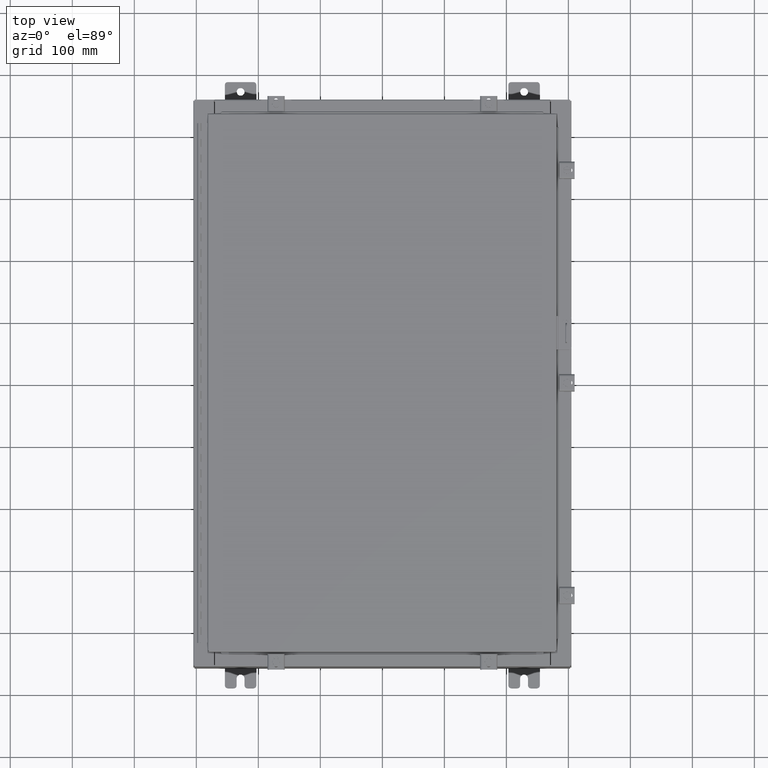
[diagram: clean part render]
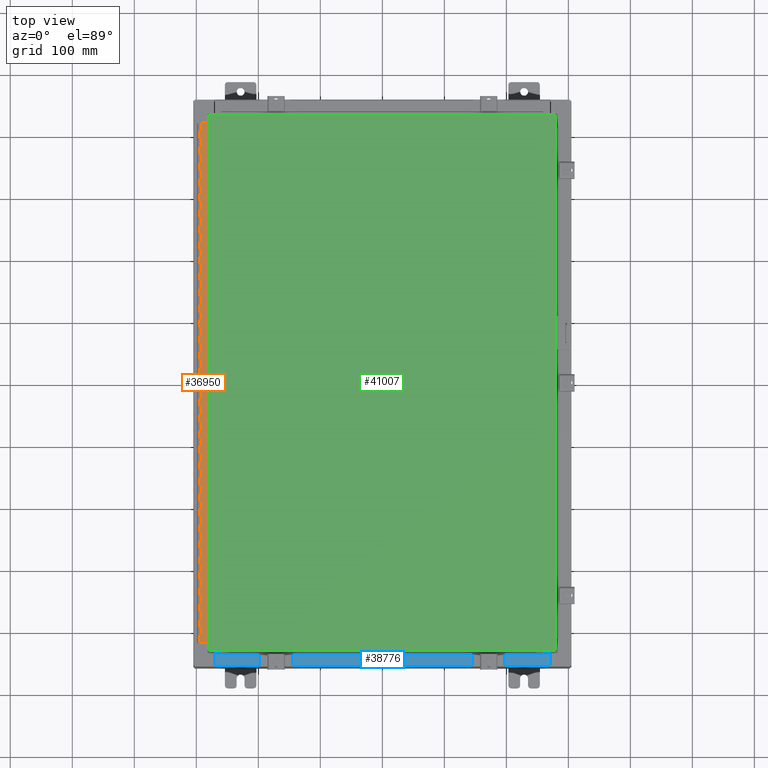
[diagram: same view with three faces highlighted in distinct colors, each labeled with its STEP entity id]
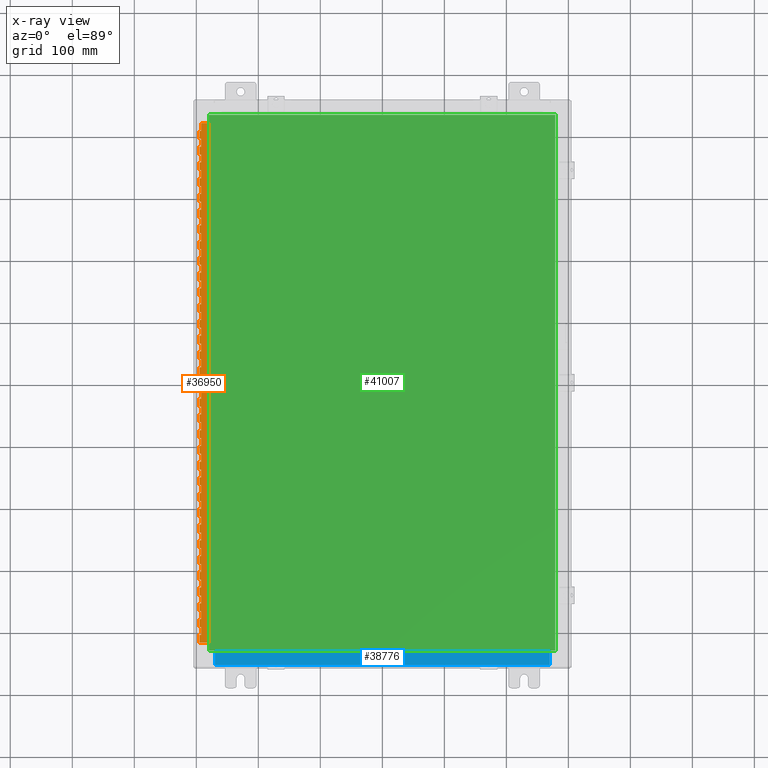
[diagram: x-ray of the same camera — body ghosted, the three highlighted faces saturated]
A machine part, top view with three faces highlighted in distinct colors.
The next image is the same camera in x-ray (body ghosted, the three faces saturated) — at least one of them is partly hidden behind the body in this view.
Their STEP definitions:

[orange] entity #36950 — the highlighted planar face has unit normal (-0, -0, 1).
#27 = VECTOR ( 'NONE', #26428, 39.37007874015748100 ) ;
#85 = ORIENTED_EDGE ( 'NONE', *, *, #41363, .T. ) ;
#106 = CARTESIAN_POINT ( 'NONE',  ( -0.6869999999999998300, 0.07549999999999991400, 0.0000000000000000000 ) ) ;
#108 = VERTEX_POINT ( 'NONE', #34876 ) ;
#192 = CARTESIAN_POINT ( 'NONE',  ( -0.6869999999999973900, 0.8004999999999995500, -3.500000000000000000 ) ) ;
#292 = ORIENTED_EDGE ( 'NONE', *, *, #21706, .F. ) ;
#293 = CARTESIAN_POINT ( 'NONE',  ( -0.6869999999999982800, 0.5504999999999997700, -12.99999999999999800 ) ) ;
#299 = LINE ( 'NONE', #42136, #16689 ) ;
#306 = LINE ( 'NONE', #10371, #16690 ) ;
#383 = EDGE_CURVE ( 'NONE', #29948, #34257, #13254, .T. ) ;
#414 = CARTESIAN_POINT ( 'NONE',  ( -0.6869999999999982800, 0.5504999999999997700, -28.50000000000000000 ) ) ;
#510 = LINE ( 'NONE', #23915, #33053 ) ;
#531 = VERTEX_POINT ( 'NONE', #5213 ) ;
#601 = ORIENTED_EDGE ( 'NONE', *, *, #4758, .T. ) ;
#673 = VERTEX_POINT ( 'NONE', #2860 ) ;
#705 = EDGE_CURVE ( 'NONE', #1883, #21714, #19289, .T. ) ;
#855 = EDGE_CURVE ( 'NONE', #9481, #11385, #13207, .T. ) ;
#860 = CARTESIAN_POINT ( 'NONE',  ( -0.6869999999999998300, 0.07549999999999991400, -33.00000000000000000 ) ) ;
#940 = DIRECTION ( 'NONE',  ( 0.0000000000000000000, -0.0000000000000000000, -1.000000000000000000 ) ) ;
#956 = ORIENTED_EDGE ( 'NONE', *, *, #30434, .T. ) ;
#957 = FACE_OUTER_BOUND ( 'NONE', #12090, .T. ) ;
#963 = EDGE_CURVE ( 'NONE', #9461, #17062, #17753, .T. ) ;
#981 = EDGE_CURVE ( 'NONE', #34183, #41989, #8134, .T. ) ;
#990 = VERTEX_POINT ( 'NONE', #8971 ) ;
#1011 = ORIENTED_EDGE ( 'NONE', *, *, #11413, .F. ) ;
#1028 = CARTESIAN_POINT ( 'NONE',  ( -0.6869999999999982800, 0.5504999999999997700, -15.50000000000000000 ) ) ;
#1063 = DIRECTION ( 'NONE',  ( 3.389037039080723100E-015, 1.000000000000000000, -0.0000000000000000000 ) ) ;
#1144 = CARTESIAN_POINT ( 'NONE',  ( -0.6869999999999982800, 0.5504999999999997700, -3.500000000000000000 ) ) ;
#1156 = ORIENTED_EDGE ( 'NONE', *, *, #37494, .F. ) ;
#1269 = LINE ( 'NONE', #19539, #2311 ) ;
#1335 = ORIENTED_EDGE ( 'NONE', *, *, #22758, .F. ) ;
#1470 = EDGE_CURVE ( 'NONE', #23573, #38919, #6059, .T. ) ;
#1497 = ORIENTED_EDGE ( 'NONE', *, *, #15713, .F. ) ;
#1535 = CARTESIAN_POINT ( 'NONE',  ( -0.6869999999999982800, 0.5504999999999997700, -16.00000000000000000 ) ) ;
#1575 = DIRECTION ( 'NONE',  ( 0.0000000000000000000, 0.0000000000000000000, 1.000000000000000000 ) ) ;
#1683 = EDGE_CURVE ( 'NONE', #12962, #23446, #38936, .T. ) ;
#1696 = CARTESIAN_POINT ( 'NONE',  ( -0.6869999999999973900, 0.8004999999999995500, -2.000000000000000000 ) ) ;
#1735 = ORIENTED_EDGE ( 'NONE', *, *, #22025, .F. ) ;
#1799 = DIRECTION ( 'NONE',  ( -3.389037039080723100E-015, -1.000000000000000000, 0.0000000000000000000 ) ) ;
#1834 = CARTESIAN_POINT ( 'NONE',  ( -0.6869999999999973900, 0.8004999999999995500, -15.50000000000000000 ) ) ;
#1844 = DIRECTION ( 'NONE',  ( 0.0000000000000000000, 0.0000000000000000000, 1.000000000000000000 ) ) ;
#1857 = VERTEX_POINT ( 'NONE', #29501 ) ;
#1883 = VERTEX_POINT ( 'NONE', #12116 ) ;
#1998 = DIRECTION ( 'NONE',  ( -3.389037039080723100E-015, -1.000000000000000000, 0.0000000000000000000 ) ) ;
#2021 = PLANE ( 'NONE',  #17467 ) ;
#2047 = EDGE_CURVE ( 'NONE', #16122, #33872, #34327, .T. ) ;
#2155 = EDGE_CURVE ( 'NONE', #6800, #25162, #21682, .T. ) ;
#2211 = VERTEX_POINT ( 'NONE', #19101 ) ;
#2295 = CARTESIAN_POINT ( 'NONE',  ( -0.6869999999999973900, 0.8004999999999995500, -16.50000000000000000 ) ) ;
#2311 = VECTOR ( 'NONE', #20475, 39.37007874015748100 ) ;
#2322 = DIRECTION ( 'NONE',  ( 0.0000000000000000000, -0.0000000000000000000, -1.000000000000000000 ) ) ;
#2332 = CARTESIAN_POINT ( 'NONE',  ( -0.6869999999999982800, 0.5504999999999997700, -24.50000000000000000 ) ) ;
#2428 = EDGE_CURVE ( 'NONE', #35618, #38124, #10508, .T. ) ;
#2491 = LINE ( 'NONE', #12781, #10226 ) ;
#2515 = CARTESIAN_POINT ( 'NONE',  ( -0.6869999999999982800, 0.5504999999999997700, -6.499999999999999100 ) ) ;
#2562 = DIRECTION ( 'NONE',  ( 0.0000000000000000000, -0.0000000000000000000, -1.000000000000000000 ) ) ;
#2587 = EDGE_CURVE ( 'NONE', #22679, #6919, #37825, .T. ) ;
#2594 = CARTESIAN_POINT ( 'NONE',  ( -0.6869999999999978300, 0.6754999999999996600, -14.00000000000000000 ) ) ;
#2622 = VERTEX_POINT ( 'NONE', #40994 ) ;
#2656 = VECTOR ( 'NONE', #5228, 39.37007874015748100 ) ;
#2694 = VECTOR ( 'NONE', #18771, 39.37007874015748100 ) ;
#2860 = CARTESIAN_POINT ( 'NONE',  ( -0.6869999999999982800, 0.5504999999999997700, -4.000000000000000000 ) ) ;
#2909 = LINE ( 'NONE', #26874, #10622 ) ;
#2932 = LINE ( 'NONE', #12104, #27881 ) ;
#2936 = LINE ( 'NONE', #32020, #35418 ) ;
#2938 = CARTESIAN_POINT ( 'NONE',  ( -0.6869999999999978300, 0.6754999999999996600, -19.50000000000000000 ) ) ;
#2957 = VERTEX_POINT ( 'NONE', #38402 ) ;
#2993 = VERTEX_POINT ( 'NONE', #13522 ) ;
#3001 = VERTEX_POINT ( 'NONE', #37290 ) ;
#3029 = CARTESIAN_POINT ( 'NONE',  ( -0.6869999999999973900, 0.8004999999999995500, -26.50000000000000400 ) ) ;
#3106 = ORIENTED_EDGE ( 'NONE', *, *, #23849, .F. ) ;
#3254 = ORIENTED_EDGE ( 'NONE', *, *, #13871, .F. ) ;
#3296 = CARTESIAN_POINT ( 'NONE',  ( -0.6869999999999982800, 0.5504999999999997700, -22.50000000000000000 ) ) ;
#3335 = CARTESIAN_POINT ( 'NONE',  ( -0.6869999999999973900, 0.8004999999999995500, -19.50000000000000000 ) ) ;
#3380 = CARTESIAN_POINT ( 'NONE',  ( -0.6869999999999978300, 0.6754999999999996600, -14.99999999999999800 ) ) ;
#3382 = LINE ( 'NONE', #3029, #19677 ) ;
#3528 = EDGE_CURVE ( 'NONE', #35005, #30490, #32429, .T. ) ;
#3701 = CARTESIAN_POINT ( 'NONE',  ( -0.6869999999999978300, 0.6754999999999996600, -33.00000000000000000 ) ) ;
#3856 = VERTEX_POINT ( 'NONE', #9291 ) ;
#3866 = CARTESIAN_POINT ( 'NONE',  ( -0.6869999999999982800, 0.5504999999999997700, -31.00000000000000000 ) ) ;
#3882 = EDGE_CURVE ( 'NONE', #23446, #8529, #35409, .T. ) ;
#3997 = CARTESIAN_POINT ( 'NONE',  ( -0.6869999999999973900, 0.8004999999999995500, -14.99999999999999800 ) ) ;
#4012 = CARTESIAN_POINT ( 'NONE',  ( -0.6869999999999978300, 0.6754999999999996600, -33.00000000000000000 ) ) ;
#4032 = LINE ( 'NONE', #39133, #5082 ) ;
#4040 = VECTOR ( 'NONE', #29960, 39.37007874015748100 ) ;
#4134 = EDGE_CURVE ( 'NONE', #17737, #32410, #299, .T. ) ;
#4139 = ORIENTED_EDGE ( 'NONE', *, *, #10888, .F. ) ;
#4162 = VERTEX_POINT ( 'NONE', #35846 ) ;
#4194 = VECTOR ( 'NONE', #12543, 39.37007874015748100 ) ;
#4244 = LINE ( 'NONE', #37500, #29139 ) ;
#4261 = VERTEX_POINT ( 'NONE', #860 ) ;
#4277 = LINE ( 'NONE', #9250, #36728 ) ;
#4439 = DIRECTION ( 'NONE',  ( 0.0000000000000000000, -0.0000000000000000000, -1.000000000000000000 ) ) ;
#4465 = DIRECTION ( 'NONE',  ( 0.0000000000000000000, 0.0000000000000000000, 1.000000000000000000 ) ) ;
#4545 = VECTOR ( 'NONE', #10458, 39.37007874015748100 ) ;
#4670 = CARTESIAN_POINT ( 'NONE',  ( -0.6869999999999982800, 0.5504999999999997700, -11.99999999999999800 ) ) ;
#4691 = ORIENTED_EDGE ( 'NONE', *, *, #1470, .F. ) ;
#4758 = EDGE_CURVE ( 'NONE', #22679, #6526, #8512, .T. ) ;
#4766 = CARTESIAN_POINT ( 'NONE',  ( -0.6869999999999982800, 0.5504999999999997700, -16.50000000000000000 ) ) ;
#4767 = CARTESIAN_POINT ( 'NONE',  ( -0.6869999999999982800, 0.5504999999999997700, -27.00000000000000000 ) ) ;
#4842 = ORIENTED_EDGE ( 'NONE', *, *, #17293, .F. ) ;
#4894 = LINE ( 'NONE', #11439, #19114 ) ;
#5017 = CARTESIAN_POINT ( 'NONE',  ( -0.6869999999999982800, 0.5504999999999997700, -29.50000000000000000 ) ) ;
#5034 = CARTESIAN_POINT ( 'NONE',  ( -0.6869999999999978300, 0.6754999999999996600, -33.00000000000000000 ) ) ;
#5047 = LINE ( 'NONE', #35270, #38524 ) ;
#5064 = LINE ( 'NONE', #30439, #38548 ) ;
#5082 = VECTOR ( 'NONE', #39081, 39.37007874015748100 ) ;
#5088 = DIRECTION ( 'NONE',  ( 0.0000000000000000000, 0.0000000000000000000, 1.000000000000000000 ) ) ;
#5107 = CARTESIAN_POINT ( 'NONE',  ( -0.6869999999999973900, 0.8004999999999995500, -23.00000000000000000 ) ) ;
#5134 = ORIENTED_EDGE ( 'NONE', *, *, #24968, .F. ) ;
#5149 = ORIENTED_EDGE ( 'NONE', *, *, #10634, .F. ) ;
#5191 = ORIENTED_EDGE ( 'NONE', *, *, #26375, .F. ) ;
#5213 = CARTESIAN_POINT ( 'NONE',  ( -0.6869999999999978300, 0.6754999999999996600, -30.50000000000000400 ) ) ;
#5228 = DIRECTION ( 'NONE',  ( 0.0000000000000000000, -0.0000000000000000000, -1.000000000000000000 ) ) ;
#5292 = CARTESIAN_POINT ( 'NONE',  ( -0.6869999999999978300, 0.6754999999999996600, -9.000000000000000000 ) ) ;
#5419 = CARTESIAN_POINT ( 'NONE',  ( -0.6869999999999982800, 0.5504999999999997700, -28.99999999999999600 ) ) ;
#5421 = CARTESIAN_POINT ( 'NONE',  ( -0.6869999999999982800, 0.5504999999999997700, -2.999999999999999600 ) ) ;
#5457 = LINE ( 'NONE', #33175, #31311 ) ;
#5574 = EDGE_CURVE ( 'NONE', #26644, #37083, #21679, .T. ) ;
#5578 = EDGE_CURVE ( 'NONE', #10339, #31066, #36839, .T. ) ;
#5623 = LINE ( 'NONE', #24798, #30447 ) ;
#5726 = DIRECTION ( 'NONE',  ( 0.0000000000000000000, -0.0000000000000000000, -1.000000000000000000 ) ) ;
#5818 = DIRECTION ( 'NONE',  ( 0.0000000000000000000, -0.0000000000000000000, -1.000000000000000000 ) ) ;
#5834 = EDGE_CURVE ( 'NONE', #29259, #34177, #21126, .T. ) ;
#5835 = VECTOR ( 'NONE', #25393, 39.37007874015748100 ) ;
#5859 = DIRECTION ( 'NONE',  ( 0.0000000000000000000, -0.0000000000000000000, -1.000000000000000000 ) ) ;
#5948 = DIRECTION ( 'NONE',  ( 0.0000000000000000000, -0.0000000000000000000, -1.000000000000000000 ) ) ;
#5957 = EDGE_CURVE ( 'NONE', #40594, #29188, #32264, .T. ) ;
#5992 = CARTESIAN_POINT ( 'NONE',  ( -0.6869999999999982800, 0.5504999999999997700, -1.000000000000000000 ) ) ;
#6059 = LINE ( 'NONE', #10411, #39459 ) ;
#6135 = ORIENTED_EDGE ( 'NONE', *, *, #33660, .F. ) ;
#6168 = ORIENTED_EDGE ( 'NONE', *, *, #5957, .F. ) ;
#6196 = CARTESIAN_POINT ( 'NONE',  ( -0.6869999999999982800, 0.5504999999999997700, -23.99999999999999600 ) ) ;
#6300 = ORIENTED_EDGE ( 'NONE', *, *, #19065, .F. ) ;
#6305 = DIRECTION ( 'NONE',  ( -3.389037039080723100E-015, -1.000000000000000000, 0.0000000000000000000 ) ) ;
#6334 = EDGE_CURVE ( 'NONE', #4261, #9481, #29537, .T. ) ;
#6336 = EDGE_CURVE ( 'NONE', #531, #40019, #28550, .T. ) ;
#6379 = DIRECTION ( 'NONE',  ( 0.0000000000000000000, -0.0000000000000000000, -1.000000000000000000 ) ) ;
#6410 = ORIENTED_EDGE ( 'NONE', *, *, #37133, .F. ) ;
#6440 = VERTEX_POINT ( 'NONE', #14576 ) ;
#6441 = VERTEX_POINT ( 'NONE', #14523 ) ;
#6451 = CARTESIAN_POINT ( 'NONE',  ( -0.6869999999999982800, 0.5504999999999997700, -15.50000000000000000 ) ) ;
#6481 = ORIENTED_EDGE ( 'NONE', *, *, #8393, .T. ) ;
#6526 = VERTEX_POINT ( 'NONE', #11835 ) ;
#6541 = EDGE_CURVE ( 'NONE', #37267, #4162, #21400, .T. ) ;
#6611 = VERTEX_POINT ( 'NONE', #8912 ) ;
#6653 = ORIENTED_EDGE ( 'NONE', *, *, #20993, .F. ) ;
#6685 = CARTESIAN_POINT ( 'NONE',  ( -0.6869999999999982800, 0.5504999999999997700, -23.00000000000000000 ) ) ;
#6696 = VECTOR ( 'NONE', #37807, 39.37007874015748100 ) ;
#6736 = LINE ( 'NONE', #25292, #14336 ) ;
#6750 = CARTESIAN_POINT ( 'NONE',  ( -0.6869999999999982800, 0.5504999999999997700, -23.50000000000000000 ) ) ;
#6800 = VERTEX_POINT ( 'NONE', #2938 ) ;
#6830 = DIRECTION ( 'NONE',  ( -3.389037039080723100E-015, -1.000000000000000000, 0.0000000000000000000 ) ) ;
#6919 = VERTEX_POINT ( 'NONE', #40947 ) ;
#6972 = DIRECTION ( 'NONE',  ( 0.0000000000000000000, 0.0000000000000000000, 1.000000000000000000 ) ) ;
#7003 = CARTESIAN_POINT ( 'NONE',  ( -0.6869999999999982800, 0.5504999999999997700, -2.500000000000000000 ) ) ;
#7014 = ORIENTED_EDGE ( 'NONE', *, *, #383, .F. ) ;
#7059 = EDGE_CURVE ( 'NONE', #24598, #39403, #22418, .T. ) ;
#7194 = DIRECTION ( 'NONE',  ( 0.0000000000000000000, 0.0000000000000000000, 1.000000000000000000 ) ) ;
#7239 = ORIENTED_EDGE ( 'NONE', *, *, #36848, .T. ) ;
#7314 = EDGE_CURVE ( 'NONE', #4261, #41435, #39079, .T. ) ;
#7447 = VERTEX_POINT ( 'NONE', #6685 ) ;
#7462 = CARTESIAN_POINT ( 'NONE',  ( -0.6869999999999978300, 0.6754999999999996600, -33.00000000000000000 ) ) ;
#7463 = VECTOR ( 'NONE', #33137, 39.37007874015748100 ) ;
#7495 = EDGE_CURVE ( 'NONE', #24423, #29898, #33989, .T. ) ;
#7498 = EDGE_CURVE ( 'NONE', #20267, #29796, #32963, .T. ) ;
#7511 = VECTOR ( 'NONE', #12745, 39.37007874015748100 ) ;
#7549 = CARTESIAN_POINT ( 'NONE',  ( -0.6869999999999973900, 0.8004999999999995500, -28.50000000000000000 ) ) ;
#7608 = EDGE_CURVE ( 'NONE', #10450, #35005, #4032, .T. ) ;
#7615 = ORIENTED_EDGE ( 'NONE', *, *, #28848, .F. ) ;
#7621 = VERTEX_POINT ( 'NONE', #39430 ) ;
#7660 = CARTESIAN_POINT ( 'NONE',  ( -0.6869999999999978300, 0.6754999999999996600, -33.00000000000000000 ) ) ;
#7723 = ORIENTED_EDGE ( 'NONE', *, *, #35134, .F. ) ;
#7773 = CARTESIAN_POINT ( 'NONE',  ( -0.6869999999999978300, 0.6754999999999996600, -17.99999999999999600 ) ) ;
#7795 = DIRECTION ( 'NONE',  ( 0.0000000000000000000, -0.0000000000000000000, -1.000000000000000000 ) ) ;
#7831 = DIRECTION ( 'NONE',  ( 0.0000000000000000000, -0.0000000000000000000, -1.000000000000000000 ) ) ;
#7966 = VECTOR ( 'NONE', #23118, 39.37007874015748100 ) ;
#8134 = LINE ( 'NONE', #38102, #32913 ) ;
#8190 = ORIENTED_EDGE ( 'NONE', *, *, #16862, .F. ) ;
#8195 = EDGE_CURVE ( 'NONE', #33872, #33391, #18232, .T. ) ;
#8200 = EDGE_CURVE ( 'NONE', #2957, #19617, #34424, .T. ) ;
#8342 = CARTESIAN_POINT ( 'NONE',  ( -0.6869999999999978300, 0.6754999999999996600, -10.50000000000000000 ) ) ;
#8393 = EDGE_CURVE ( 'NONE', #990, #18007, #10148, .T. ) ;
#8409 = EDGE_CURVE ( 'NONE', #26750, #41435, #16701, .T. ) ;
#8480 = LINE ( 'NONE', #1834, #17092 ) ;
#8486 = LINE ( 'NONE', #35390, #21644 ) ;
#8512 = LINE ( 'NONE', #15299, #7511 ) ;
#8529 = VERTEX_POINT ( 'NONE', #18517 ) ;
#8597 = LINE ( 'NONE', #41966, #24831 ) ;
#8628 = ORIENTED_EDGE ( 'NONE', *, *, #14875, .T. ) ;
#8645 = VECTOR ( 'NONE', #5818, 39.37007874015748100 ) ;
#8684 = ORIENTED_EDGE ( 'NONE', *, *, #24084, .F. ) ;
#8686 = DIRECTION ( 'NONE',  ( 3.369016658928398200E-015, 1.000000000000000000, 0.0000000000000000000 ) ) ;
#8711 = LINE ( 'NONE', #20455, #42134 ) ;
#8715 = ORIENTED_EDGE ( 'NONE', *, *, #2155, .F. ) ;
#8757 = EDGE_CURVE ( 'NONE', #26644, #29057, #21740, .T. ) ;
#8771 = CARTESIAN_POINT ( 'NONE',  ( -0.6869999999999982800, 0.5504999999999997700, -20.50000000000000400 ) ) ;
#8796 = LINE ( 'NONE', #22112, #16389 ) ;
#8801 = ORIENTED_EDGE ( 'NONE', *, *, #32739, .F. ) ;
#8848 = DIRECTION ( 'NONE',  ( 0.0000000000000000000, 0.0000000000000000000, 1.000000000000000000 ) ) ;
#8891 = DIRECTION ( 'NONE',  ( -3.389037039080723100E-015, -1.000000000000000000, 0.0000000000000000000 ) ) ;
#8912 = CARTESIAN_POINT ( 'NONE',  ( -0.6869999999999982800, 0.5504999999999997700, -8.000000000000000000 ) ) ;
#8971 = CARTESIAN_POINT ( 'NONE',  ( -0.6869999999999978300, 0.6754999999999996600, -22.50000000000000000 ) ) ;
#9091 = VECTOR ( 'NONE', #7795, 39.37007874015748100 ) ;
#9105 = VECTOR ( 'NONE', #36899, 39.37007874015748100 ) ;
#9108 = VECTOR ( 'NONE', #23709, 39.37007874015748100 ) ;
#9130 = CARTESIAN_POINT ( 'NONE',  ( -0.6869999999999978300, 0.6754999999999996600, -33.00000000000000000 ) ) ;
#9170 = ORIENTED_EDGE ( 'NONE', *, *, #31063, .F. ) ;
#9250 = CARTESIAN_POINT ( 'NONE',  ( -0.6869999999999973900, 0.8004999999999995500, -28.99999999999999600 ) ) ;
#9252 = EDGE_CURVE ( 'NONE', #35618, #2993, #39920, .T. ) ;
#9265 = CARTESIAN_POINT ( 'NONE',  ( -0.6869999999999973900, 0.8004999999999995500, -28.00000000000000000 ) ) ;
#9291 = CARTESIAN_POINT ( 'NONE',  ( -0.6869999999999982800, 0.5504999999999997700, -7.000000000000000000 ) ) ;
#9414 = DIRECTION ( 'NONE',  ( 3.389037039080723100E-015, 1.000000000000000000, -0.0000000000000000000 ) ) ;
#9461 = VERTEX_POINT ( 'NONE', #414 ) ;
#9481 = VERTEX_POINT ( 'NONE', #106 ) ;
#9698 = DIRECTION ( 'NONE',  ( 3.389037039080723100E-015, 1.000000000000000000, -0.0000000000000000000 ) ) ;
#9740 = DIRECTION ( 'NONE',  ( 3.389037039080723100E-015, 1.000000000000000000, -0.0000000000000000000 ) ) ;
#9844 = CARTESIAN_POINT ( 'NONE',  ( -0.6869999999999982800, 0.5504999999999997700, -25.50000000000000400 ) ) ;
#9867 = CARTESIAN_POINT ( 'NONE',  ( -0.6869999999999982800, 0.5504999999999997700, -21.50000000000000400 ) ) ;
#9905 = ORIENTED_EDGE ( 'NONE', *, *, #10836, .F. ) ;
#10015 = CARTESIAN_POINT ( 'NONE',  ( -0.6869999999999982800, 0.5504999999999997700, -0.5000000000000000000 ) ) ;
#10113 = EDGE_CURVE ( 'NONE', #32405, #1883, #41143, .T. ) ;
#10148 = LINE ( 'NONE', #21743, #34916 ) ;
#10226 = VECTOR ( 'NONE', #38658, 39.37007874015748100 ) ;
#10241 = LINE ( 'NONE', #35512, #25461 ) ;
#10339 = VERTEX_POINT ( 'NONE', #42166 ) ;
#10371 = CARTESIAN_POINT ( 'NONE',  ( -0.6869999999999973900, 0.8004999999999995500, -29.50000000000000000 ) ) ;
#10411 = CARTESIAN_POINT ( 'NONE',  ( -0.6869999999999973900, 0.8004999999999995500, -2.999999999999999600 ) ) ;
#10413 = EDGE_CURVE ( 'NONE', #8529, #18007, #12757, .T. ) ;
#10429 = ORIENTED_EDGE ( 'NONE', *, *, #2587, .F. ) ;
#10450 = VERTEX_POINT ( 'NONE', #39325 ) ;
#10458 = DIRECTION ( 'NONE',  ( 3.389037039080723100E-015, 1.000000000000000000, -0.0000000000000000000 ) ) ;
#10491 = LINE ( 'NONE', #37283, #26725 ) ;
#10508 = LINE ( 'NONE', #34862, #26747 ) ;
#10524 = VECTOR ( 'NONE', #5726, 39.37007874015748100 ) ;
#10545 = ORIENTED_EDGE ( 'NONE', *, *, #8195, .F. ) ;
#10578 = ORIENTED_EDGE ( 'NONE', *, *, #15899, .T. ) ;
#10587 = CARTESIAN_POINT ( 'NONE',  ( -0.6869999999999978300, 0.6754999999999996600, -24.50000000000000000 ) ) ;
#10613 = CARTESIAN_POINT ( 'NONE',  ( -0.6869999999999973900, 0.8004999999999995500, -5.000000000000000000 ) ) ;
#10622 = VECTOR ( 'NONE', #2562, 39.37007874015748100 ) ;
#10634 = EDGE_CURVE ( 'NONE', #32982, #12257, #30445, .T. ) ;
#10667 = ORIENTED_EDGE ( 'NONE', *, *, #38978, .F. ) ;
#10671 = EDGE_CURVE ( 'NONE', #2622, #10450, #28438, .T. ) ;
#10702 = CARTESIAN_POINT ( 'NONE',  ( -0.6869999999999973900, 0.8004999999999995500, -7.000000000000000000 ) ) ;
#10736 = EDGE_CURVE ( 'NONE', #10773, #17402, #18796, .T. ) ;
#10737 = CARTESIAN_POINT ( 'NONE',  ( -0.6869999999999978300, 0.6754999999999996600, -9.500000000000000000 ) ) ;
#10747 = ORIENTED_EDGE ( 'NONE', *, *, #33260, .F. ) ;
#10773 = VERTEX_POINT ( 'NONE', #26628 ) ;
#10820 = VERTEX_POINT ( 'NONE', #24071 ) ;
#10829 = ORIENTED_EDGE ( 'NONE', *, *, #855, .F. ) ;
#10836 = EDGE_CURVE ( 'NONE', #40105, #17428, #24378, .T. ) ;
#10848 = ORIENTED_EDGE ( 'NONE', *, *, #36722, .F. ) ;
#10888 = EDGE_CURVE ( 'NONE', #10820, #6441, #5047, .T. ) ;
#10912 = DIRECTION ( 'NONE',  ( 3.369016658928398200E-015, 1.000000000000000000, 0.0000000000000000000 ) ) ;
#10972 = LINE ( 'NONE', #28834, #28215 ) ;
#10984 = DIRECTION ( 'NONE',  ( 0.0000000000000000000, 0.0000000000000000000, 1.000000000000000000 ) ) ;
#10997 = VECTOR ( 'NONE', #6830, 39.37007874015748100 ) ;
#11075 = EDGE_CURVE ( 'NONE', #1857, #40105, #16240, .T. ) ;
#11078 = DIRECTION ( 'NONE',  ( -3.389037039080723100E-015, -1.000000000000000000, 0.0000000000000000000 ) ) ;
#11113 = ORIENTED_EDGE ( 'NONE', *, *, #14175, .F. ) ;
#11133 = CARTESIAN_POINT ( 'NONE',  ( -0.6869999999999973900, 0.8004999999999995500, -20.50000000000000400 ) ) ;
#11156 = VERTEX_POINT ( 'NONE', #2594 ) ;
#11215 = CARTESIAN_POINT ( 'NONE',  ( -0.6869999999999982800, 0.5504999999999997700, -14.49999999999999800 ) ) ;
#11240 = CARTESIAN_POINT ( 'NONE',  ( -0.6869999999999978300, 0.6754999999999996600, -33.00000000000000000 ) ) ;
#11321 = CARTESIAN_POINT ( 'NONE',  ( -0.6869999999999982800, 0.5504999999999997700, -7.499999999999999100 ) ) ;
#11385 = VERTEX_POINT ( 'NONE', #24169 ) ;
#11394 = CARTESIAN_POINT ( 'NONE',  ( -0.6869999999999978300, 0.6754999999999996600, -4.500000000000000000 ) ) ;
#11413 = EDGE_CURVE ( 'NONE', #14327, #27242, #2909, .T. ) ;
#11439 = CARTESIAN_POINT ( 'NONE',  ( -0.6869999999999978300, 0.6754999999999996600, -33.00000000000000000 ) ) ;
#11471 = EDGE_CURVE ( 'NONE', #40215, #28154, #18200, .T. ) ;
#11588 = VERTEX_POINT ( 'NONE', #34291 ) ;
#11597 = EDGE_CURVE ( 'NONE', #25897, #13188, #32376, .T. ) ;
#11614 = LINE ( 'NONE', #15485, #36381 ) ;
#11633 = ORIENTED_EDGE ( 'NONE', *, *, #5574, .F. ) ;
#11642 = CARTESIAN_POINT ( 'NONE',  ( -0.6869999999999982800, 0.5504999999999997700, -10.50000000000000000 ) ) ;
#11652 = EDGE_CURVE ( 'NONE', #14032, #40378, #29342, .T. ) ;
#11659 = DIRECTION ( 'NONE',  ( 0.0000000000000000000, -0.0000000000000000000, -1.000000000000000000 ) ) ;
#11725 = ORIENTED_EDGE ( 'NONE', *, *, #10671, .F. ) ;
#11775 = EDGE_CURVE ( 'NONE', #37083, #3856, #25326, .T. ) ;
#11778 = LINE ( 'NONE', #19407, #28001 ) ;
#11835 = CARTESIAN_POINT ( 'NONE',  ( -0.6869999999999978300, 0.6754999999999996600, -31.00000000000000000 ) ) ;
#11860 = CARTESIAN_POINT ( 'NONE',  ( -0.6869999999999978300, 0.6754999999999996600, -2.999999999999999600 ) ) ;
#11894 = DIRECTION ( 'NONE',  ( -3.389037039080723100E-015, -1.000000000000000000, 0.0000000000000000000 ) ) ;
#12090 = EDGE_LOOP ( 'NONE', ( #21147, #13557, #30817, #10667, #33917, #14682, #12478, #10429, #601, #14563, #36569, #40404, #29349, #18169, #30864, #1735, #33810, #27901, #28838, #32422, #16408, #5149, #5191, #4139, #26692, #9905, #12947, #31533, #26652, #15507, #4842, #38333, #37559, #28928, #29821, #31421, #35215, #1156, #12536, #37301, #85, #16996, #41486, #31340, #6481, #24202, #24969, #23844, #20911, #40804, #17146, #18452, #38111, #27941, #20554, #8715, #8628, #7615, #27757, #32686, #956, #15836, #18609, #17263, #18064, #16682, #17175, #30843, #14648, #10545, #28799, #11113, #27328, #24343, #7014, #30756, #10578, #292, #40118, #6410, #7239, #6300, #33961, #29378, #13731, #25420, #37188, #11725, #22389, #7723, #10747, #36542, #12302, #1497, #26492, #5134, #38093, #6168, #8190, #6653, #41101, #34000, #30314, #8684, #23217, #9170, #34478, #11633, #28033, #14029, #1011, #1335, #31971, #6135, #28448, #37611, #12144, #12380, #10848, #34185, #18148, #4691, #25564, #24949, #37706, #25135, #3254, #3106, #41788, #8801, #34601, #13344, #38164, #10829 ) ) ;
#12104 = CARTESIAN_POINT ( 'NONE',  ( -0.6869999999999973900, 0.8004999999999995500, -14.00000000000000000 ) ) ;
#12115 = VECTOR ( 'NONE', #17836, 39.37007874015748100 ) ;
#12116 = CARTESIAN_POINT ( 'NONE',  ( -0.6869999999999982800, 0.5504999999999997700, -16.50000000000000000 ) ) ;
#12137 = VECTOR ( 'NONE', #30219, 39.37007874015748100 ) ;
#12144 = ORIENTED_EDGE ( 'NONE', *, *, #31443, .T. ) ;
#12201 = DIRECTION ( 'NONE',  ( 3.389037039080723100E-015, 1.000000000000000000, -0.0000000000000000000 ) ) ;
#12247 = LINE ( 'NONE', #40445, #13246 ) ;
#12257 = VERTEX_POINT ( 'NONE', #21668 ) ;
#12302 = ORIENTED_EDGE ( 'NONE', *, *, #9252, .T. ) ;
#12330 = VERTEX_POINT ( 'NONE', #38618 ) ;
#12380 = ORIENTED_EDGE ( 'NONE', *, *, #20251, .F. ) ;
#12416 = LINE ( 'NONE', #11642, #2656 ) ;
#12419 = VERTEX_POINT ( 'NONE', #28153 ) ;
#12478 = ORIENTED_EDGE ( 'NONE', *, *, #23147, .F. ) ;
#12482 = CARTESIAN_POINT ( 'NONE',  ( -0.6869999999999982800, 0.5504999999999997700, -9.500000000000000000 ) ) ;
#12484 = CARTESIAN_POINT ( 'NONE',  ( -0.6869999999999982800, 0.5504999999999997700, -6.499999999999999100 ) ) ;
#12536 = ORIENTED_EDGE ( 'NONE', *, *, #34636, .F. ) ;
#12543 = DIRECTION ( 'NONE',  ( 0.0000000000000000000, 0.0000000000000000000, 1.000000000000000000 ) ) ;
#12584 = DIRECTION ( 'NONE',  ( 0.0000000000000000000, -0.0000000000000000000, -1.000000000000000000 ) ) ;
#12634 = DIRECTION ( 'NONE',  ( 0.0000000000000000000, 0.0000000000000000000, 1.000000000000000000 ) ) ;
#12651 = EDGE_CURVE ( 'NONE', #32775, #12257, #32290, .T. ) ;
#12657 = CARTESIAN_POINT ( 'NONE',  ( -0.6869999999999978300, 0.6754999999999996600, -11.00000000000000000 ) ) ;
#12745 = DIRECTION ( 'NONE',  ( 0.0000000000000000000, 0.0000000000000000000, 1.000000000000000000 ) ) ;
#12757 = LINE ( 'NONE', #26354, #4040 ) ;
#12781 = CARTESIAN_POINT ( 'NONE',  ( -0.6869999999999973900, 0.8004999999999995500, -13.50000000000000000 ) ) ;
#12810 = CARTESIAN_POINT ( 'NONE',  ( -0.6869999999999978300, 0.6754999999999996600, -12.49999999999999800 ) ) ;
#12886 = CARTESIAN_POINT ( 'NONE',  ( -0.6869999999999982800, 0.5504999999999997700, -21.00000000000000000 ) ) ;
#12947 = ORIENTED_EDGE ( 'NONE', *, *, #11075, .F. ) ;
#12962 = VERTEX_POINT ( 'NONE', #24362 ) ;
#13004 = VECTOR ( 'NONE', #38097, 39.37007874015748100 ) ;
#13152 = EDGE_CURVE ( 'NONE', #18293, #2211, #32360, .T. ) ;
#13188 = VERTEX_POINT ( 'NONE', #15377 ) ;
#13189 = CARTESIAN_POINT ( 'NONE',  ( -0.6869999999999973900, 0.8004999999999995500, -2.500000000000000000 ) ) ;
#13207 = LINE ( 'NONE', #41763, #30428 ) ;
#13246 = VECTOR ( 'NONE', #24357, 39.37007874015748100 ) ;
#13254 = LINE ( 'NONE', #30708, #20825 ) ;
#13336 = EDGE_CURVE ( 'NONE', #4162, #40850, #26309, .T. ) ;
#13344 = ORIENTED_EDGE ( 'NONE', *, *, #5834, .F. ) ;
#13382 = EDGE_CURVE ( 'NONE', #24423, #38919, #25312, .T. ) ;
#13423 = DIRECTION ( 'NONE',  ( 3.389037039080723100E-015, 1.000000000000000000, -0.0000000000000000000 ) ) ;
#13522 = CARTESIAN_POINT ( 'NONE',  ( -0.6869999999999978300, 0.6754999999999996600, -10.00000000000000000 ) ) ;
#13557 = ORIENTED_EDGE ( 'NONE', *, *, #7314, .T. ) ;
#13584 = DIRECTION ( 'NONE',  ( 0.0000000000000000000, 0.0000000000000000000, 1.000000000000000000 ) ) ;
#13635 = DIRECTION ( 'NONE',  ( -3.389037039080723100E-015, -1.000000000000000000, 0.0000000000000000000 ) ) ;
#13663 = EDGE_CURVE ( 'NONE', #27242, #29057, #19167, .T. ) ;
#13731 = ORIENTED_EDGE ( 'NONE', *, *, #16537, .T. ) ;
#13781 = EDGE_CURVE ( 'NONE', #990, #42095, #14101, .T. ) ;
#13796 = LINE ( 'NONE', #40512, #28987 ) ;
#13798 = VERTEX_POINT ( 'NONE', #27238 ) ;
#13851 = DIRECTION ( 'NONE',  ( 0.0000000000000000000, -0.0000000000000000000, -1.000000000000000000 ) ) ;
#13871 = EDGE_CURVE ( 'NONE', #37678, #13798, #1269, .T. ) ;
#13903 = EDGE_CURVE ( 'NONE', #21714, #36960, #33803, .T. ) ;
#13976 = DIRECTION ( 'NONE',  ( 3.389037039080723100E-015, 1.000000000000000000, -0.0000000000000000000 ) ) ;
#13988 = VERTEX_POINT ( 'NONE', #12810 ) ;
#14029 = ORIENTED_EDGE ( 'NONE', *, *, #13663, .F. ) ;
#14032 = VERTEX_POINT ( 'NONE', #10587 ) ;
#14092 = LINE ( 'NONE', #23921, #36842 ) ;
#14101 = LINE ( 'NONE', #27068, #38896 ) ;
#14175 = EDGE_CURVE ( 'NONE', #38162, #16122, #8480, .T. ) ;
#14184 = CARTESIAN_POINT ( 'NONE',  ( -0.6869999999999973900, 0.8004999999999995500, -10.00000000000000000 ) ) ;
#14196 = CARTESIAN_POINT ( 'NONE',  ( -0.6869999999999982800, 0.5504999999999997700, -30.50000000000000400 ) ) ;
#14231 = VECTOR ( 'NONE', #33420, 39.37007874015748100 ) ;
#14327 = VERTEX_POINT ( 'NONE', #40424 ) ;
#14336 = VECTOR ( 'NONE', #5859, 39.37007874015748100 ) ;
#14402 = VECTOR ( 'NONE', #39623, 39.37007874015748100 ) ;
#14410 = VECTOR ( 'NONE', #2322, 39.37007874015748100 ) ;
#14468 = CARTESIAN_POINT ( 'NONE',  ( -0.6869999999999978300, 0.6754999999999996600, -15.50000000000000000 ) ) ;
#14523 = CARTESIAN_POINT ( 'NONE',  ( -0.6869999999999982800, 0.5504999999999997700, -27.50000000000000000 ) ) ;
#14563 = ORIENTED_EDGE ( 'NONE', *, *, #17808, .F. ) ;
#14568 = VECTOR ( 'NONE', #39287, 39.37007874015748100 ) ;
#14576 = CARTESIAN_POINT ( 'NONE',  ( -0.6869999999999978300, 0.6754999999999996600, -17.50000000000000000 ) ) ;
#14648 = ORIENTED_EDGE ( 'NONE', *, *, #24957, .T. ) ;
#14682 = ORIENTED_EDGE ( 'NONE', *, *, #10736, .F. ) ;
#14700 = DIRECTION ( 'NONE',  ( 0.0000000000000000000, 0.0000000000000000000, 1.000000000000000000 ) ) ;
#14727 = VECTOR ( 'NONE', #32952, 39.37007874015748100 ) ;
#14737 = CARTESIAN_POINT ( 'NONE',  ( -0.6869999999999982800, 0.5504999999999997700, -9.000000000000000000 ) ) ;
#14829 = VECTOR ( 'NONE', #28525, 39.37007874015748100 ) ;
#14875 = EDGE_CURVE ( 'NONE', #6800, #25431, #34736, .T. ) ;
#14912 = EDGE_CURVE ( 'NONE', #108, #34525, #15532, .T. ) ;
#15028 = VECTOR ( 'NONE', #16747, 39.37007874015748100 ) ;
#15035 = CARTESIAN_POINT ( 'NONE',  ( -0.6869999999999978300, 0.6754999999999996600, -33.00000000000000000 ) ) ;
#15044 = DIRECTION ( 'NONE',  ( 0.0000000000000000000, 0.0000000000000000000, 1.000000000000000000 ) ) ;
#15088 = VERTEX_POINT ( 'NONE', #25228 ) ;
#15132 = DIRECTION ( 'NONE',  ( 0.0000000000000000000, 0.0000000000000000000, 1.000000000000000000 ) ) ;
#15189 = CARTESIAN_POINT ( 'NONE',  ( -0.6869999999999978300, 0.6754999999999996600, -17.00000000000000000 ) ) ;
#15197 = CARTESIAN_POINT ( 'NONE',  ( -0.6869999999999982800, 0.5504999999999997700, -12.49999999999999800 ) ) ;
#15198 = CARTESIAN_POINT ( 'NONE',  ( -0.6869999999999973900, 0.8004999999999995500, -11.00000000000000000 ) ) ;
#15298 = VERTEX_POINT ( 'NONE', #21586 ) ;
#15299 = CARTESIAN_POINT ( 'NONE',  ( -0.6869999999999978300, 0.6754999999999996600, -33.00000000000000000 ) ) ;
#15377 = CARTESIAN_POINT ( 'NONE',  ( -0.6869999999999982800, 0.5504999999999997700, -17.99999999999999600 ) ) ;
#15418 = CARTESIAN_POINT ( 'NONE',  ( -0.6869999999999982800, 0.5504999999999997700, -19.00000000000000000 ) ) ;
#15446 = LINE ( 'NONE', #25008, #14410 ) ;
#15448 = EDGE_CURVE ( 'NONE', #20015, #17402, #33241, .T. ) ;
#15485 = CARTESIAN_POINT ( 'NONE',  ( -0.6869999999999978300, 0.6754999999999996600, -33.00000000000000000 ) ) ;
#15507 = ORIENTED_EDGE ( 'NONE', *, *, #36548, .F. ) ;
#15532 = LINE ( 'NONE', #28737, #40314 ) ;
#15533 = LINE ( 'NONE', #40642, #30697 ) ;
#15582 = CARTESIAN_POINT ( 'NONE',  ( -0.6869999999999978300, 0.6754999999999996600, -33.00000000000000000 ) ) ;
#15588 = CARTESIAN_POINT ( 'NONE',  ( -0.6869999999999978300, 0.6754999999999996600, -5.000000000000000000 ) ) ;
#15609 = DIRECTION ( 'NONE',  ( 3.369016658928398200E-015, 1.000000000000000000, 0.0000000000000000000 ) ) ;
#15713 = EDGE_CURVE ( 'NONE', #15298, #2993, #29694, .T. ) ;
#15777 = CARTESIAN_POINT ( 'NONE',  ( -0.6869999999999978300, 0.6754999999999996600, -24.99999999999999600 ) ) ;
#15836 = ORIENTED_EDGE ( 'NONE', *, *, #39870, .F. ) ;
#15899 = EDGE_CURVE ( 'NONE', #36914, #11156, #39790, .T. ) ;
#15965 = EDGE_CURVE ( 'NONE', #17062, #7621, #4277, .T. ) ;
#15973 = DIRECTION ( 'NONE',  ( -3.389037039080723100E-015, -1.000000000000000000, 0.0000000000000000000 ) ) ;
#16016 = CARTESIAN_POINT ( 'NONE',  ( -0.6870000000000022800, -0.6245000000000003900, -33.00000000000000000 ) ) ;
#16021 = LINE ( 'NONE', #23194, #40822 ) ;
#16077 = CARTESIAN_POINT ( 'NONE',  ( -0.6869999999999982800, 0.5504999999999997700, -33.00000000000000000 ) ) ;
#16122 = VERTEX_POINT ( 'NONE', #6451 ) ;
#16149 = VECTOR ( 'NONE', #5088, 39.37007874015748100 ) ;
#16156 = VERTEX_POINT ( 'NONE', #5992 ) ;
#16160 = CARTESIAN_POINT ( 'NONE',  ( -0.6869999999999982800, 0.5504999999999997700, -17.50000000000000000 ) ) ;
#16172 = LINE ( 'NONE', #1696, #33356 ) ;
#16240 = LINE ( 'NONE', #24673, #8645 ) ;
#16306 = LINE ( 'NONE', #37961, #23937 ) ;
#16382 = CARTESIAN_POINT ( 'NONE',  ( -0.6869999999999973900, 0.8004999999999995500, -8.000000000000000000 ) ) ;
#16389 = VECTOR ( 'NONE', #12634, 39.37007874015748100 ) ;
#16405 = DIRECTION ( 'NONE',  ( -3.389037039080723100E-015, -1.000000000000000000, 0.0000000000000000000 ) ) ;
#16408 = ORIENTED_EDGE ( 'NONE', *, *, #12651, .T. ) ;
#16429 = DIRECTION ( 'NONE',  ( 3.389037039080723100E-015, 1.000000000000000000, -0.0000000000000000000 ) ) ;
#16515 = CARTESIAN_POINT ( 'NONE',  ( -0.6869999999999978300, 0.6754999999999996600, -26.50000000000000400 ) ) ;
#16537 = EDGE_CURVE ( 'NONE', #13988, #30490, #36032, .T. ) ;
#16612 = VECTOR ( 'NONE', #13584, 39.37007874015748100 ) ;
#16657 = CARTESIAN_POINT ( 'NONE',  ( -0.6869999999999973900, 0.8004999999999995500, -18.50000000000000000 ) ) ;
#16682 = ORIENTED_EDGE ( 'NONE', *, *, #13903, .F. ) ;
#16689 = VECTOR ( 'NONE', #28576, 39.37007874015748100 ) ;
#16690 = VECTOR ( 'NONE', #13635, 39.37007874015748100 ) ;
#16701 = LINE ( 'NONE', #20976, #32880 ) ;
#16706 = CARTESIAN_POINT ( 'NONE',  ( -0.6869999999999978300, 0.6754999999999996600, -20.50000000000000400 ) ) ;
#16716 = CARTESIAN_POINT ( 'NONE',  ( -0.6869999999999978300, 0.6754999999999996600, -18.50000000000000000 ) ) ;
#16747 = DIRECTION ( 'NONE',  ( 3.389037039080723100E-015, 1.000000000000000000, -0.0000000000000000000 ) ) ;
#16789 = VECTOR ( 'NONE', #42160, 39.37007874015748100 ) ;
#16815 = CARTESIAN_POINT ( 'NONE',  ( -0.6869999999999973900, 0.8004999999999995500, -6.499999999999999100 ) ) ;
#16862 = EDGE_CURVE ( 'NONE', #30318, #40594, #8711, .T. ) ;
#16865 = CARTESIAN_POINT ( 'NONE',  ( -0.6869999999999982800, 0.5504999999999997700, -11.00000000000000000 ) ) ;
#16888 = CARTESIAN_POINT ( 'NONE',  ( -0.6869999999999978300, 0.6754999999999996600, -32.00000000000000000 ) ) ;
#16945 = CARTESIAN_POINT ( 'NONE',  ( -0.6869999999999978300, 0.6754999999999996600, -33.00000000000000000 ) ) ;
#16996 = ORIENTED_EDGE ( 'NONE', *, *, #26173, .F. ) ;
#17062 = VERTEX_POINT ( 'NONE', #5419 ) ;
#17092 = VECTOR ( 'NONE', #1998, 39.37007874015748100 ) ;
#17146 = ORIENTED_EDGE ( 'NONE', *, *, #13336, .F. ) ;
#17175 = ORIENTED_EDGE ( 'NONE', *, *, #705, .F. ) ;
#17205 = CARTESIAN_POINT ( 'NONE',  ( -0.6869999999999982800, 0.5504999999999997700, -19.50000000000000000 ) ) ;
#17263 = ORIENTED_EDGE ( 'NONE', *, *, #32003, .F. ) ;
#17293 = EDGE_CURVE ( 'NONE', #29796, #39884, #36478, .T. ) ;
#17357 = VERTEX_POINT ( 'NONE', #293 ) ;
#17402 = VERTEX_POINT ( 'NONE', #16888 ) ;
#17424 = LINE ( 'NONE', #7003, #27 ) ;
#17428 = VERTEX_POINT ( 'NONE', #39658 ) ;
#17453 = EDGE_CURVE ( 'NONE', #32775, #9461, #22852, .T. ) ;
#17467 = AXIS2_PLACEMENT_3D ( 'NONE', #24685, #28076, #8686 ) ;
#17582 = EDGE_CURVE ( 'NONE', #14032, #15088, #27386, .T. ) ;
#17732 = DIRECTION ( 'NONE',  ( -3.389037039080723100E-015, -1.000000000000000000, 0.0000000000000000000 ) ) ;
#17737 = VERTEX_POINT ( 'NONE', #34802 ) ;
#17753 = LINE ( 'NONE', #30310, #33931 ) ;
#17808 = EDGE_CURVE ( 'NONE', #18302, #6526, #2936, .T. ) ;
#17832 = CARTESIAN_POINT ( 'NONE',  ( -0.6869999999999973900, 0.8004999999999995500, -23.99999999999999600 ) ) ;
#17836 = DIRECTION ( 'NONE',  ( 0.0000000000000000000, -0.0000000000000000000, -1.000000000000000000 ) ) ;
#17974 = CARTESIAN_POINT ( 'NONE',  ( -0.6869999999999982800, 0.5504999999999997700, -32.50000000000000000 ) ) ;
#18007 = VERTEX_POINT ( 'NONE', #41234 ) ;
#18064 = ORIENTED_EDGE ( 'NONE', *, *, #41979, .T. ) ;
#18134 = LINE ( 'NONE', #30689, #26785 ) ;
#18148 = ORIENTED_EDGE ( 'NONE', *, *, #13382, .T. ) ;
#18169 = ORIENTED_EDGE ( 'NONE', *, *, #4134, .F. ) ;
#18200 = LINE ( 'NONE', #27591, #34394 ) ;
#18232 = LINE ( 'NONE', #26505, #35433 ) ;
#18237 = DIRECTION ( 'NONE',  ( -3.389037039080723100E-015, -1.000000000000000000, 0.0000000000000000000 ) ) ;
#18293 = VERTEX_POINT ( 'NONE', #16716 ) ;
#18302 = VERTEX_POINT ( 'NONE', #3866 ) ;
#18452 = ORIENTED_EDGE ( 'NONE', *, *, #6541, .F. ) ;
#18473 = VECTOR ( 'NONE', #27811, 39.37007874015748100 ) ;
#18496 = EDGE_CURVE ( 'NONE', #3001, #6611, #19682, .T. ) ;
#18517 = CARTESIAN_POINT ( 'NONE',  ( -0.6869999999999982800, 0.5504999999999997700, -22.00000000000000000 ) ) ;
#18570 = DIRECTION ( 'NONE',  ( -3.389037039080723100E-015, -1.000000000000000000, 0.0000000000000000000 ) ) ;
#18609 = ORIENTED_EDGE ( 'NONE', *, *, #11597, .F. ) ;
#18614 = LINE ( 'NONE', #26241, #10997 ) ;
#18629 = CARTESIAN_POINT ( 'NONE',  ( -0.6869999999999973900, 0.8004999999999995500, -30.50000000000000400 ) ) ;
#18647 = LINE ( 'NONE', #3701, #16612 ) ;
#18658 = LINE ( 'NONE', #10702, #27704 ) ;
#18686 = DIRECTION ( 'NONE',  ( 0.0000000000000000000, -0.0000000000000000000, -1.000000000000000000 ) ) ;
#18695 = CARTESIAN_POINT ( 'NONE',  ( -0.6869999999999973900, 0.8004999999999995500, -17.50000000000000000 ) ) ;
#18747 = DIRECTION ( 'NONE',  ( 0.0000000000000000000, 0.0000000000000000000, 1.000000000000000000 ) ) ;
#18771 = DIRECTION ( 'NONE',  ( 3.389037039080723100E-015, 1.000000000000000000, -0.0000000000000000000 ) ) ;
#18782 = CARTESIAN_POINT ( 'NONE',  ( -0.6869999999999978300, 0.6754999999999996600, -33.00000000000000000 ) ) ;
#18796 = LINE ( 'NONE', #36741, #27406 ) ;
#18858 = VECTOR ( 'NONE', #25774, 39.37007874015748100 ) ;
#18991 = EDGE_CURVE ( 'NONE', #11588, #35000, #5457, .T. ) ;
#18997 = CARTESIAN_POINT ( 'NONE',  ( -0.6869999999999982800, 0.5504999999999997700, -27.50000000000000000 ) ) ;
#19003 = VECTOR ( 'NONE', #18686, 39.37007874015748100 ) ;
#19065 = EDGE_CURVE ( 'NONE', #17357, #32291, #14092, .T. ) ;
#19089 = DIRECTION ( 'NONE',  ( 0.0000000000000000000, -0.0000000000000000000, -1.000000000000000000 ) ) ;
#19101 = CARTESIAN_POINT ( 'NONE',  ( -0.6869999999999982800, 0.5504999999999997700, -18.50000000000000000 ) ) ;
#19114 = VECTOR ( 'NONE', #14700, 39.37007874015748100 ) ;
#19122 = LINE ( 'NONE', #2332, #10524 ) ;
#19167 = LINE ( 'NONE', #33705, #24773 ) ;
#19182 = DIRECTION ( 'NONE',  ( -3.389037039080723100E-015, -1.000000000000000000, 0.0000000000000000000 ) ) ;
#19286 = VECTOR ( 'NONE', #22706, 39.37007874015748100 ) ;
#19289 = LINE ( 'NONE', #4766, #34462 ) ;
#19330 = CARTESIAN_POINT ( 'NONE',  ( -0.6869999999999978300, 0.6754999999999996600, -1.000000000000000000 ) ) ;
#19404 = DIRECTION ( 'NONE',  ( 3.389037039080723100E-015, 1.000000000000000000, -0.0000000000000000000 ) ) ;
#19407 = CARTESIAN_POINT ( 'NONE',  ( -0.6869999999999973900, 0.8004999999999995500, -4.000000000000000000 ) ) ;
#19445 = DIRECTION ( 'NONE',  ( 0.0000000000000000000, 0.0000000000000000000, 1.000000000000000000 ) ) ;
#19492 = LINE ( 'NONE', #31279, #36694 ) ;
#19539 = CARTESIAN_POINT ( 'NONE',  ( -0.6869999999999982800, 0.5504999999999997700, -1.499999999999999800 ) ) ;
#19570 = CARTESIAN_POINT ( 'NONE',  ( -0.6869999999999998300, 0.07549999999999991400, -33.00000000000000000 ) ) ;
#19579 = DIRECTION ( 'NONE',  ( 3.389037039080723100E-015, 1.000000000000000000, -0.0000000000000000000 ) ) ;
#19598 = DIRECTION ( 'NONE',  ( 3.389037039080723100E-015, 1.000000000000000000, -0.0000000000000000000 ) ) ;
#19617 = VERTEX_POINT ( 'NONE', #19330 ) ;
#19646 = LINE ( 'NONE', #31559, #36854 ) ;
#19651 = CARTESIAN_POINT ( 'NONE',  ( -0.6869999999999982800, 0.5504999999999997700, -8.500000000000000000 ) ) ;
#19677 = VECTOR ( 'NONE', #41223, 39.37007874015748100 ) ;
#19682 = LINE ( 'NONE', #11321, #12115 ) ;
#19804 = VECTOR ( 'NONE', #39084, 39.37007874015748100 ) ;
#19899 = VECTOR ( 'NONE', #18570, 39.37007874015748100 ) ;
#19948 = VECTOR ( 'NONE', #38260, 39.37007874015748100 ) ;
#19957 = CARTESIAN_POINT ( 'NONE',  ( -0.6869999999999978300, 0.6754999999999996600, -33.00000000000000000 ) ) ;
#19990 = EDGE_CURVE ( 'NONE', #2211, #38959, #37091, .T. ) ;
#20015 = VERTEX_POINT ( 'NONE', #40806 ) ;
#20033 = VECTOR ( 'NONE', #12584, 39.37007874015748100 ) ;
#20090 = CARTESIAN_POINT ( 'NONE',  ( -0.6869999999999973900, 0.8004999999999995500, -17.00000000000000000 ) ) ;
#20095 = EDGE_CURVE ( 'NONE', #12419, #40289, #23464, .T. ) ;
#20161 = CARTESIAN_POINT ( 'NONE',  ( -0.6869999999999982800, 0.5504999999999997700, -14.99999999999999800 ) ) ;
#20251 = EDGE_CURVE ( 'NONE', #673, #32452, #11778, .T. ) ;
#20267 = VERTEX_POINT ( 'NONE', #32428 ) ;
#20337 = CARTESIAN_POINT ( 'NONE',  ( -0.6869999999999982800, 0.5504999999999997700, -6.000000000000000900 ) ) ;
#20417 = CARTESIAN_POINT ( 'NONE',  ( -0.6869999999999982800, 0.5504999999999997700, -3.500000000000000000 ) ) ;
#20453 = DIRECTION ( 'NONE',  ( 0.0000000000000000000, -0.0000000000000000000, -1.000000000000000000 ) ) ;
#20455 = CARTESIAN_POINT ( 'NONE',  ( -0.6869999999999982800, 0.5504999999999997700, -8.500000000000000000 ) ) ;
#20475 = DIRECTION ( 'NONE',  ( 0.0000000000000000000, -0.0000000000000000000, -1.000000000000000000 ) ) ;
#20554 = ORIENTED_EDGE ( 'NONE', *, *, #34312, .F. ) ;
#20629 = CARTESIAN_POINT ( 'NONE',  ( -0.6869999999999982800, 0.5504999999999997700, -30.50000000000000400 ) ) ;
#20825 = VECTOR ( 'NONE', #24234, 39.37007874015748100 ) ;
#20911 = ORIENTED_EDGE ( 'NONE', *, *, #34621, .T. ) ;
#20976 = CARTESIAN_POINT ( 'NONE',  ( -0.6869999999999982800, 0.5504999999999997700, -32.50000000000000000 ) ) ;
#20993 = EDGE_CURVE ( 'NONE', #39153, #30318, #12247, .T. ) ;
#21052 = DIRECTION ( 'NONE',  ( -3.389037039080723100E-015, -1.000000000000000000, 0.0000000000000000000 ) ) ;
#21126 = LINE ( 'NONE', #38821, #36293 ) ;
#21141 = CARTESIAN_POINT ( 'NONE',  ( -0.6869999999999982800, 0.5504999999999997700, -21.50000000000000400 ) ) ;
#21147 = ORIENTED_EDGE ( 'NONE', *, *, #6334, .F. ) ;
#21204 = DIRECTION ( 'NONE',  ( 0.0000000000000000000, -0.0000000000000000000, -1.000000000000000000 ) ) ;
#21261 = VECTOR ( 'NONE', #36590, 39.37007874015748100 ) ;
#21371 = EDGE_CURVE ( 'NONE', #6611, #27071, #24892, .T. ) ;
#21400 = LINE ( 'NONE', #11133, #38642 ) ;
#21417 = CARTESIAN_POINT ( 'NONE',  ( -0.6869999999999982800, 0.5504999999999997700, -18.50000000000000000 ) ) ;
#21482 = LINE ( 'NONE', #31948, #4194 ) ;
#21560 = VERTEX_POINT ( 'NONE', #11394 ) ;
#21586 = CARTESIAN_POINT ( 'NONE',  ( -0.6869999999999982800, 0.5504999999999997700, -10.00000000000000000 ) ) ;
#21644 = VECTOR ( 'NONE', #38687, 39.37007874015748100 ) ;
#21647 = CARTESIAN_POINT ( 'NONE',  ( -0.6869999999999982800, 0.5504999999999997700, -4.500000000000000000 ) ) ;
#21668 = CARTESIAN_POINT ( 'NONE',  ( -0.6869999999999978300, 0.6754999999999996600, -28.00000000000000000 ) ) ;
#21679 = LINE ( 'NONE', #16815, #30281 ) ;
#21682 = LINE ( 'NONE', #3335, #29275 ) ;
#21706 = EDGE_CURVE ( 'NONE', #35000, #11156, #2932, .T. ) ;
#21714 = VERTEX_POINT ( 'NONE', #41261 ) ;
#21740 = LINE ( 'NONE', #15035, #29337 ) ;
#21743 = CARTESIAN_POINT ( 'NONE',  ( -0.6869999999999978300, 0.6754999999999996600, -33.00000000000000000 ) ) ;
#21789 = DIRECTION ( 'NONE',  ( 0.0000000000000000000, 0.0000000000000000000, 1.000000000000000000 ) ) ;
#21881 = VECTOR ( 'NONE', #15609, 39.37007874015748100 ) ;
#22025 = EDGE_CURVE ( 'NONE', #12330, #30593, #306, .T. ) ;
#22112 = CARTESIAN_POINT ( 'NONE',  ( -0.6869999999999978300, 0.6754999999999996600, -33.00000000000000000 ) ) ;
#22264 = EDGE_CURVE ( 'NONE', #13798, #31066, #16172, .T. ) ;
#22389 = ORIENTED_EDGE ( 'NONE', *, *, #32353, .T. ) ;
#22418 = LINE ( 'NONE', #28155, #32034 ) ;
#22429 = EDGE_CURVE ( 'NONE', #34183, #1857, #3382, .T. ) ;
#22488 = CARTESIAN_POINT ( 'NONE',  ( -0.6869999999999978300, 0.6754999999999996600, -33.00000000000000000 ) ) ;
#22646 = VECTOR ( 'NONE', #18747, 39.37007874015748100 ) ;
#22679 = VERTEX_POINT ( 'NONE', #23965 ) ;
#22706 = DIRECTION ( 'NONE',  ( 0.0000000000000000000, -0.0000000000000000000, -1.000000000000000000 ) ) ;
#22758 = EDGE_CURVE ( 'NONE', #12419, #14327, #18134, .T. ) ;
#22784 = CARTESIAN_POINT ( 'NONE',  ( -0.6869999999999982800, 0.5504999999999997700, -9.500000000000000000 ) ) ;
#22852 = LINE ( 'NONE', #7549, #14231 ) ;
#23007 = CARTESIAN_POINT ( 'NONE',  ( -0.6869999999999982800, 0.5504999999999997700, -28.00000000000000000 ) ) ;
#23118 = DIRECTION ( 'NONE',  ( 0.0000000000000000000, 0.0000000000000000000, 1.000000000000000000 ) ) ;
#23124 = CARTESIAN_POINT ( 'NONE',  ( -0.6869999999999973900, 0.8004999999999995500, -17.99999999999999600 ) ) ;
#23147 = EDGE_CURVE ( 'NONE', #6919, #10773, #30769, .T. ) ;
#23194 = CARTESIAN_POINT ( 'NONE',  ( -0.6869999999999978300, 0.6754999999999996600, -33.00000000000000000 ) ) ;
#23217 = ORIENTED_EDGE ( 'NONE', *, *, #7059, .T. ) ;
#23446 = VERTEX_POINT ( 'NONE', #21141 ) ;
#23464 = LINE ( 'NONE', #9130, #14829 ) ;
#23511 = DIRECTION ( 'NONE',  ( 0.0000000000000000000, 0.0000000000000000000, 1.000000000000000000 ) ) ;
#23521 = VERTEX_POINT ( 'NONE', #31075 ) ;
#23573 = VERTEX_POINT ( 'NONE', #5421 ) ;
#23592 = CARTESIAN_POINT ( 'NONE',  ( -0.6869999999999978300, 0.6754999999999996600, -0.5000000000000000000 ) ) ;
#23667 = LINE ( 'NONE', #23124, #15028 ) ;
#23676 = VERTEX_POINT ( 'NONE', #10737 ) ;
#23709 = DIRECTION ( 'NONE',  ( 0.0000000000000000000, -0.0000000000000000000, -1.000000000000000000 ) ) ;
#23720 = VERTEX_POINT ( 'NONE', #7773 ) ;
#23737 = CARTESIAN_POINT ( 'NONE',  ( -0.6869999999999978300, 0.6754999999999996600, -2.000000000000000000 ) ) ;
#23798 = VECTOR ( 'NONE', #15973, 39.37007874015748100 ) ;
#23844 = ORIENTED_EDGE ( 'NONE', *, *, #1683, .F. ) ;
#23849 = EDGE_CURVE ( 'NONE', #2957, #37678, #10491, .T. ) ;
#23899 = VERTEX_POINT ( 'NONE', #31098 ) ;
#23915 = CARTESIAN_POINT ( 'NONE',  ( -0.6869999999999982800, 0.5504999999999997700, -4.500000000000000000 ) ) ;
#23921 = CARTESIAN_POINT ( 'NONE',  ( -0.6869999999999973900, 0.8004999999999995500, -12.99999999999999800 ) ) ;
#23937 = VECTOR ( 'NONE', #28356, 39.37007874015748100 ) ;
#23965 = CARTESIAN_POINT ( 'NONE',  ( -0.6869999999999978300, 0.6754999999999996600, -31.50000000000000400 ) ) ;
#24066 = LINE ( 'NONE', #18997, #19948 ) ;
#24071 = CARTESIAN_POINT ( 'NONE',  ( -0.6869999999999978300, 0.6754999999999996600, -27.50000000000000000 ) ) ;
#24084 = EDGE_CURVE ( 'NONE', #24598, #3001, #10972, .T. ) ;
#24134 = CARTESIAN_POINT ( 'NONE',  ( -0.6869999999999982800, 0.5504999999999997700, -14.00000000000000000 ) ) ;
#24169 = CARTESIAN_POINT ( 'NONE',  ( -0.6869999999999978300, 0.6754999999999996600, 0.0000000000000000000 ) ) ;
#24202 = ORIENTED_EDGE ( 'NONE', *, *, #10413, .F. ) ;
#24234 = DIRECTION ( 'NONE',  ( 0.0000000000000000000, -0.0000000000000000000, -1.000000000000000000 ) ) ;
#24343 = ORIENTED_EDGE ( 'NONE', *, *, #28990, .F. ) ;
#24355 = DIRECTION ( 'NONE',  ( -3.389037039080723100E-015, -1.000000000000000000, 0.0000000000000000000 ) ) ;
#24357 = DIRECTION ( 'NONE',  ( -3.389037039080723100E-015, -1.000000000000000000, 0.0000000000000000000 ) ) ;
#24362 = CARTESIAN_POINT ( 'NONE',  ( -0.6869999999999978300, 0.6754999999999996600, -21.50000000000000400 ) ) ;
#24378 = LINE ( 'NONE', #32801, #14727 ) ;
#24415 = VECTOR ( 'NONE', #42125, 39.37007874015748100 ) ;
#24423 = VERTEX_POINT ( 'NONE', #31068 ) ;
#24547 = DIRECTION ( 'NONE',  ( 3.389037039080723100E-015, 1.000000000000000000, -0.0000000000000000000 ) ) ;
#24577 = LINE ( 'NONE', #38239, #32140 ) ;
#24598 = VERTEX_POINT ( 'NONE', #35533 ) ;
#24673 = CARTESIAN_POINT ( 'NONE',  ( -0.6869999999999982800, 0.5504999999999997700, -26.50000000000000400 ) ) ;
#24685 = CARTESIAN_POINT ( 'NONE',  ( -0.6870000000000022800, -0.6245000000000003900, -33.00000000000000000 ) ) ;
#24773 = VECTOR ( 'NONE', #32015, 39.37007874015748100 ) ;
#24798 = CARTESIAN_POINT ( 'NONE',  ( -0.6869999999999973900, 0.8004999999999995500, -23.50000000000000000 ) ) ;
#24831 = VECTOR ( 'NONE', #9740, 39.37007874015748100 ) ;
#24892 = LINE ( 'NONE', #16382, #41075 ) ;
#24949 = ORIENTED_EDGE ( 'NONE', *, *, #28313, .F. ) ;
#24957 = EDGE_CURVE ( 'NONE', #32405, #33391, #4244, .T. ) ;
#24968 = EDGE_CURVE ( 'NONE', #23676, #33447, #19492, .T. ) ;
#24969 = ORIENTED_EDGE ( 'NONE', *, *, #3882, .F. ) ;
#25008 = CARTESIAN_POINT ( 'NONE',  ( -0.6869999999999982800, 0.5504999999999997700, -12.49999999999999800 ) ) ;
#25084 = EDGE_CURVE ( 'NONE', #37267, #34525, #40256, .T. ) ;
#25135 = ORIENTED_EDGE ( 'NONE', *, *, #22264, .F. ) ;
#25142 = EDGE_CURVE ( 'NONE', #34177, #16156, #29621, .T. ) ;
#25162 = VERTEX_POINT ( 'NONE', #35488 ) ;
#25223 = LINE ( 'NONE', #19957, #7966 ) ;
#25228 = CARTESIAN_POINT ( 'NONE',  ( -0.6869999999999982800, 0.5504999999999997700, -24.50000000000000000 ) ) ;
#25243 = CARTESIAN_POINT ( 'NONE',  ( -0.6869999999999973900, 0.8004999999999995500, -31.50000000000000400 ) ) ;
#25264 = VECTOR ( 'NONE', #12201, 39.37007874015748100 ) ;
#25292 = CARTESIAN_POINT ( 'NONE',  ( -0.6869999999999982800, 0.5504999999999997700, -23.50000000000000000 ) ) ;
#25312 = LINE ( 'NONE', #7660, #33851 ) ;
#25326 = LINE ( 'NONE', #2515, #9105 ) ;
#25393 = DIRECTION ( 'NONE',  ( 0.0000000000000000000, 0.0000000000000000000, 1.000000000000000000 ) ) ;
#25420 = ORIENTED_EDGE ( 'NONE', *, *, #3528, .F. ) ;
#25431 = VERTEX_POINT ( 'NONE', #36595 ) ;
#25461 = VECTOR ( 'NONE', #19404, 39.37007874015748100 ) ;
#25564 = ORIENTED_EDGE ( 'NONE', *, *, #41533, .F. ) ;
#25683 = DIRECTION ( 'NONE',  ( 0.0000000000000000000, 0.0000000000000000000, 1.000000000000000000 ) ) ;
#25774 = DIRECTION ( 'NONE',  ( 0.0000000000000000000, 0.0000000000000000000, 1.000000000000000000 ) ) ;
#25784 = VERTEX_POINT ( 'NONE', #6196 ) ;
#25888 = VECTOR ( 'NONE', #25683, 39.37007874015748100 ) ;
#25897 = VERTEX_POINT ( 'NONE', #39140 ) ;
#26061 = CARTESIAN_POINT ( 'NONE',  ( -0.6869999999999978300, 0.6754999999999996600, -8.000000000000000000 ) ) ;
#26173 = EDGE_CURVE ( 'NONE', #7447, #39258, #35637, .T. ) ;
#26241 = CARTESIAN_POINT ( 'NONE',  ( -0.6869999999999973900, 0.8004999999999995500, -14.49999999999999800 ) ) ;
#26297 = EDGE_CURVE ( 'NONE', #41872, #17357, #15446, .T. ) ;
#26309 = LINE ( 'NONE', #8771, #9091 ) ;
#26311 = DIRECTION ( 'NONE',  ( 3.389037039080723100E-015, 1.000000000000000000, -0.0000000000000000000 ) ) ;
#26354 = CARTESIAN_POINT ( 'NONE',  ( -0.6869999999999973900, 0.8004999999999995500, -22.00000000000000000 ) ) ;
#26375 = EDGE_CURVE ( 'NONE', #6441, #32982, #24066, .T. ) ;
#26386 = LINE ( 'NONE', #32776, #28412 ) ;
#26428 = DIRECTION ( 'NONE',  ( 0.0000000000000000000, -0.0000000000000000000, -1.000000000000000000 ) ) ;
#26465 = CARTESIAN_POINT ( 'NONE',  ( -0.6869999999999978300, 0.6754999999999996600, -33.00000000000000000 ) ) ;
#26492 = ORIENTED_EDGE ( 'NONE', *, *, #32269, .F. ) ;
#26505 = CARTESIAN_POINT ( 'NONE',  ( -0.6869999999999973900, 0.8004999999999995500, -16.00000000000000000 ) ) ;
#26535 = VECTOR ( 'NONE', #20453, 39.37007874015748100 ) ;
#26628 = CARTESIAN_POINT ( 'NONE',  ( -0.6869999999999982800, 0.5504999999999997700, -32.00000000000000000 ) ) ;
#26644 = VERTEX_POINT ( 'NONE', #33542 ) ;
#26652 = ORIENTED_EDGE ( 'NONE', *, *, #981, .T. ) ;
#26692 = ORIENTED_EDGE ( 'NONE', *, *, #37005, .T. ) ;
#26725 = VECTOR ( 'NONE', #27699, 39.37007874015748100 ) ;
#26731 = CARTESIAN_POINT ( 'NONE',  ( -0.6869999999999978300, 0.6754999999999996600, -29.99999999999999600 ) ) ;
#26747 = VECTOR ( 'NONE', #6305, 39.37007874015748100 ) ;
#26750 = VERTEX_POINT ( 'NONE', #17974 ) ;
#26785 = VECTOR ( 'NONE', #21052, 39.37007874015748100 ) ;
#26874 = CARTESIAN_POINT ( 'NONE',  ( -0.6869999999999982800, 0.5504999999999997700, -5.500000000000000000 ) ) ;
#26949 = VERTEX_POINT ( 'NONE', #38212 ) ;
#26989 = DIRECTION ( 'NONE',  ( 3.389037039080723100E-015, 1.000000000000000000, -0.0000000000000000000 ) ) ;
#27068 = CARTESIAN_POINT ( 'NONE',  ( -0.6869999999999973900, 0.8004999999999995500, -22.50000000000000000 ) ) ;
#27071 = VERTEX_POINT ( 'NONE', #26061 ) ;
#27118 = CARTESIAN_POINT ( 'NONE',  ( -0.6869999999999978300, 0.6754999999999996600, -7.000000000000000000 ) ) ;
#27120 = DIRECTION ( 'NONE',  ( 0.0000000000000000000, -0.0000000000000000000, -1.000000000000000000 ) ) ;
#27141 = DIRECTION ( 'NONE',  ( -3.389037039080723100E-015, -1.000000000000000000, 0.0000000000000000000 ) ) ;
#27217 = EDGE_CURVE ( 'NONE', #23676, #29188, #32546, .T. ) ;
#27238 = CARTESIAN_POINT ( 'NONE',  ( -0.6869999999999982800, 0.5504999999999997700, -2.000000000000000000 ) ) ;
#27242 = VERTEX_POINT ( 'NONE', #20337 ) ;
#27328 = ORIENTED_EDGE ( 'NONE', *, *, #30386, .T. ) ;
#27386 = LINE ( 'NONE', #40345, #34950 ) ;
#27406 = VECTOR ( 'NONE', #36526, 39.37007874015748100 ) ;
#27591 = CARTESIAN_POINT ( 'NONE',  ( -0.6869999999999973900, 0.8004999999999995500, -24.99999999999999600 ) ) ;
#27620 = DIRECTION ( 'NONE',  ( 0.0000000000000000000, 0.0000000000000000000, 1.000000000000000000 ) ) ;
#27627 = LINE ( 'NONE', #31434, #19003 ) ;
#27699 = DIRECTION ( 'NONE',  ( -3.389037039080723100E-015, -1.000000000000000000, 0.0000000000000000000 ) ) ;
#27704 = VECTOR ( 'NONE', #26989, 39.37007874015748100 ) ;
#27757 = ORIENTED_EDGE ( 'NONE', *, *, #19990, .F. ) ;
#27811 = DIRECTION ( 'NONE',  ( 3.389037039080723100E-015, 1.000000000000000000, -0.0000000000000000000 ) ) ;
#27881 = VECTOR ( 'NONE', #28231, 39.37007874015748100 ) ;
#27901 = ORIENTED_EDGE ( 'NONE', *, *, #15965, .F. ) ;
#27940 = DIRECTION ( 'NONE',  ( 0.0000000000000000000, 0.0000000000000000000, 1.000000000000000000 ) ) ;
#27941 = ORIENTED_EDGE ( 'NONE', *, *, #14912, .F. ) ;
#27982 = CARTESIAN_POINT ( 'NONE',  ( -0.6869999999999978300, 0.6754999999999996600, -20.00000000000000000 ) ) ;
#28001 = VECTOR ( 'NONE', #9698, 39.37007874015748100 ) ;
#28033 = ORIENTED_EDGE ( 'NONE', *, *, #8757, .T. ) ;
#28036 = DIRECTION ( 'NONE',  ( -3.389037039080723100E-015, -1.000000000000000000, 0.0000000000000000000 ) ) ;
#28076 = DIRECTION ( 'NONE',  ( 1.000000000000000000, -3.369016658928398200E-015, 0.0000000000000000000 ) ) ;
#28153 = CARTESIAN_POINT ( 'NONE',  ( -0.6869999999999978300, 0.6754999999999996600, -5.500000000000000000 ) ) ;
#28154 = VERTEX_POINT ( 'NONE', #15777 ) ;
#28155 = CARTESIAN_POINT ( 'NONE',  ( -0.6869999999999978300, 0.6754999999999996600, -33.00000000000000000 ) ) ;
#28215 = VECTOR ( 'NONE', #19182, 39.37007874015748100 ) ;
#28231 = DIRECTION ( 'NONE',  ( 3.389037039080723100E-015, 1.000000000000000000, -0.0000000000000000000 ) ) ;
#28275 = VECTOR ( 'NONE', #15044, 39.37007874015748100 ) ;
#28313 = EDGE_CURVE ( 'NONE', #10339, #23521, #28458, .T. ) ;
#28356 = DIRECTION ( 'NONE',  ( 0.0000000000000000000, 0.0000000000000000000, 1.000000000000000000 ) ) ;
#28404 = VERTEX_POINT ( 'NONE', #16865 ) ;
#28412 = VECTOR ( 'NONE', #13423, 39.37007874015748100 ) ;
#28438 = LINE ( 'NONE', #41774, #29430 ) ;
#28448 = ORIENTED_EDGE ( 'NONE', *, *, #34362, .F. ) ;
#28458 = LINE ( 'NONE', #13189, #19804 ) ;
#28525 = DIRECTION ( 'NONE',  ( 0.0000000000000000000, 0.0000000000000000000, 1.000000000000000000 ) ) ;
#28535 = EDGE_CURVE ( 'NONE', #20267, #28154, #5064, .T. ) ;
#28550 = LINE ( 'NONE', #18629, #19899 ) ;
#28566 = DIRECTION ( 'NONE',  ( 3.389037039080723100E-015, 1.000000000000000000, -0.0000000000000000000 ) ) ;
#28576 = DIRECTION ( 'NONE',  ( 3.389037039080723100E-015, 1.000000000000000000, -0.0000000000000000000 ) ) ;
#28737 = CARTESIAN_POINT ( 'NONE',  ( -0.6869999999999973900, 0.8004999999999995500, -20.00000000000000000 ) ) ;
#28799 = ORIENTED_EDGE ( 'NONE', *, *, #2047, .F. ) ;
#28834 = CARTESIAN_POINT ( 'NONE',  ( -0.6869999999999973900, 0.8004999999999995500, -7.499999999999999100 ) ) ;
#28838 = ORIENTED_EDGE ( 'NONE', *, *, #963, .F. ) ;
#28848 = EDGE_CURVE ( 'NONE', #38959, #25431, #26386, .T. ) ;
#28928 = ORIENTED_EDGE ( 'NONE', *, *, #11471, .F. ) ;
#28987 = VECTOR ( 'NONE', #1575, 39.37007874015748100 ) ;
#28990 = EDGE_CURVE ( 'NONE', #34257, #30918, #29882, .T. ) ;
#29057 = VERTEX_POINT ( 'NONE', #40158 ) ;
#29139 = VECTOR ( 'NONE', #1844, 39.37007874015748100 ) ;
#29188 = VERTEX_POINT ( 'NONE', #5292 ) ;
#29257 = VECTOR ( 'NONE', #41809, 39.37007874015748100 ) ;
#29259 = VERTEX_POINT ( 'NONE', #23592 ) ;
#29275 = VECTOR ( 'NONE', #40933, 39.37007874015748100 ) ;
#29337 = VECTOR ( 'NONE', #15132, 39.37007874015748100 ) ;
#29342 = LINE ( 'NONE', #32662, #12137 ) ;
#29349 = ORIENTED_EDGE ( 'NONE', *, *, #29566, .T. ) ;
#29378 = ORIENTED_EDGE ( 'NONE', *, *, #40160, .F. ) ;
#29430 = VECTOR ( 'NONE', #41748, 39.37007874015748100 ) ;
#29501 = CARTESIAN_POINT ( 'NONE',  ( -0.6869999999999982800, 0.5504999999999997700, -26.50000000000000400 ) ) ;
#29537 = LINE ( 'NONE', #19570, #37102 ) ;
#29566 = EDGE_CURVE ( 'NONE', #531, #32410, #11614, .T. ) ;
#29621 = LINE ( 'NONE', #35203, #37770 ) ;
#29690 = DIRECTION ( 'NONE',  ( 0.0000000000000000000, 0.0000000000000000000, 1.000000000000000000 ) ) ;
#29694 = LINE ( 'NONE', #14184, #37255 ) ;
#29747 = CARTESIAN_POINT ( 'NONE',  ( -0.6869999999999982800, 0.5504999999999997700, -26.00000000000000000 ) ) ;
#29760 = VECTOR ( 'NONE', #4439, 39.37007874015748100 ) ;
#29796 = VERTEX_POINT ( 'NONE', #36367 ) ;
#29808 = VECTOR ( 'NONE', #33218, 39.37007874015748100 ) ;
#29821 = ORIENTED_EDGE ( 'NONE', *, *, #31303, .F. ) ;
#29882 = LINE ( 'NONE', #3997, #21261 ) ;
#29898 = VERTEX_POINT ( 'NONE', #1144 ) ;
#29924 = CARTESIAN_POINT ( 'NONE',  ( -0.6869999999999978300, 0.6754999999999996600, -33.00000000000000000 ) ) ;
#29948 = VERTEX_POINT ( 'NONE', #11215 ) ;
#29960 = DIRECTION ( 'NONE',  ( 3.389037039080723100E-015, 1.000000000000000000, -0.0000000000000000000 ) ) ;
#30096 = DIRECTION ( 'NONE',  ( 0.0000000000000000000, 0.0000000000000000000, 1.000000000000000000 ) ) ;
#30219 = DIRECTION ( 'NONE',  ( 0.0000000000000000000, 0.0000000000000000000, 1.000000000000000000 ) ) ;
#30223 = CARTESIAN_POINT ( 'NONE',  ( -0.6869999999999978300, 0.6754999999999996600, -4.000000000000000000 ) ) ;
#30281 = VECTOR ( 'NONE', #16405, 39.37007874015748100 ) ;
#30310 = CARTESIAN_POINT ( 'NONE',  ( -0.6869999999999982800, 0.5504999999999997700, -28.50000000000000000 ) ) ;
#30314 = ORIENTED_EDGE ( 'NONE', *, *, #18496, .F. ) ;
#30318 = VERTEX_POINT ( 'NONE', #19651 ) ;
#30335 = VECTOR ( 'NONE', #1799, 39.37007874015748100 ) ;
#30386 = EDGE_CURVE ( 'NONE', #38162, #30918, #18647, .T. ) ;
#30428 = VECTOR ( 'NONE', #10912, 39.37007874015748100 ) ;
#30434 = EDGE_CURVE ( 'NONE', #18293, #23720, #40394, .T. ) ;
#30439 = CARTESIAN_POINT ( 'NONE',  ( -0.6869999999999978300, 0.6754999999999996600, -33.00000000000000000 ) ) ;
#30445 = LINE ( 'NONE', #9265, #4545 ) ;
#30447 = VECTOR ( 'NONE', #28036, 39.37007874015748100 ) ;
#30490 = VERTEX_POINT ( 'NONE', #36739 ) ;
#30496 = EDGE_CURVE ( 'NONE', #40019, #18302, #38388, .T. ) ;
#30579 = EDGE_CURVE ( 'NONE', #12330, #7621, #4894, .T. ) ;
#30593 = VERTEX_POINT ( 'NONE', #5017 ) ;
#30689 = CARTESIAN_POINT ( 'NONE',  ( -0.6869999999999973900, 0.8004999999999995500, -5.500000000000000000 ) ) ;
#30697 = VECTOR ( 'NONE', #34228, 39.37007874015748100 ) ;
#30708 = CARTESIAN_POINT ( 'NONE',  ( -0.6869999999999982800, 0.5504999999999997700, -14.49999999999999800 ) ) ;
#30756 = ORIENTED_EDGE ( 'NONE', *, *, #31526, .F. ) ;
#30769 = LINE ( 'NONE', #36023, #14568 ) ;
#30817 = ORIENTED_EDGE ( 'NONE', *, *, #8409, .F. ) ;
#30843 = ORIENTED_EDGE ( 'NONE', *, *, #10113, .F. ) ;
#30864 = ORIENTED_EDGE ( 'NONE', *, *, #40723, .F. ) ;
#30918 = VERTEX_POINT ( 'NONE', #3380 ) ;
#30923 = VERTEX_POINT ( 'NONE', #6750 ) ;
#31063 = EDGE_CURVE ( 'NONE', #3856, #39403, #18658, .T. ) ;
#31066 = VERTEX_POINT ( 'NONE', #23737 ) ;
#31068 = CARTESIAN_POINT ( 'NONE',  ( -0.6869999999999978300, 0.6754999999999996600, -3.500000000000000000 ) ) ;
#31075 = CARTESIAN_POINT ( 'NONE',  ( -0.6869999999999982800, 0.5504999999999997700, -2.500000000000000000 ) ) ;
#31098 = CARTESIAN_POINT ( 'NONE',  ( -0.6869999999999978300, 0.6754999999999996600, -13.50000000000000000 ) ) ;
#31193 = VECTOR ( 'NONE', #10984, 39.37007874015748100 ) ;
#31279 = CARTESIAN_POINT ( 'NONE',  ( -0.6869999999999973900, 0.8004999999999995500, -9.500000000000000000 ) ) ;
#31303 = EDGE_CURVE ( 'NONE', #15088, #40215, #19122, .T. ) ;
#31311 = VECTOR ( 'NONE', #13851, 39.37007874015748100 ) ;
#31340 = ORIENTED_EDGE ( 'NONE', *, *, #13781, .F. ) ;
#31421 = ORIENTED_EDGE ( 'NONE', *, *, #17582, .F. ) ;
#31424 = VERTEX_POINT ( 'NONE', #12657 ) ;
#31434 = CARTESIAN_POINT ( 'NONE',  ( -0.6869999999999982800, 0.5504999999999997700, -29.50000000000000000 ) ) ;
#31439 = VECTOR ( 'NONE', #19579, 39.37007874015748100 ) ;
#31443 = EDGE_CURVE ( 'NONE', #21560, #32452, #8486, .T. ) ;
#31458 = LINE ( 'NONE', #17832, #39037 ) ;
#31473 = LINE ( 'NONE', #40893, #32457 ) ;
#31526 = EDGE_CURVE ( 'NONE', #36914, #29948, #18614, .T. ) ;
#31533 = ORIENTED_EDGE ( 'NONE', *, *, #22429, .F. ) ;
#31559 = CARTESIAN_POINT ( 'NONE',  ( -0.6869999999999973900, 0.8004999999999995500, -32.50000000000000000 ) ) ;
#31586 = EDGE_CURVE ( 'NONE', #29259, #11385, #25223, .T. ) ;
#31899 = DIRECTION ( 'NONE',  ( 0.0000000000000000000, -0.0000000000000000000, -1.000000000000000000 ) ) ;
#31948 = CARTESIAN_POINT ( 'NONE',  ( -0.6869999999999978300, 0.6754999999999996600, -33.00000000000000000 ) ) ;
#31971 = ORIENTED_EDGE ( 'NONE', *, *, #20095, .T. ) ;
#31972 = VERTEX_POINT ( 'NONE', #21647 ) ;
#32003 = EDGE_CURVE ( 'NONE', #6440, #25897, #39830, .T. ) ;
#32015 = DIRECTION ( 'NONE',  ( 3.389037039080723100E-015, 1.000000000000000000, -0.0000000000000000000 ) ) ;
#32020 = CARTESIAN_POINT ( 'NONE',  ( -0.6869999999999973900, 0.8004999999999995500, -31.00000000000000000 ) ) ;
#32034 = VECTOR ( 'NONE', #27940, 39.37007874015748100 ) ;
#32140 = VECTOR ( 'NONE', #41499, 39.37007874015748100 ) ;
#32207 = DIRECTION ( 'NONE',  ( 3.389037039080723100E-015, 1.000000000000000000, -0.0000000000000000000 ) ) ;
#32264 = LINE ( 'NONE', #34719, #7463 ) ;
#32269 = EDGE_CURVE ( 'NONE', #33447, #15298, #35228, .T. ) ;
#32290 = LINE ( 'NONE', #41736, #29257 ) ;
#32291 = VERTEX_POINT ( 'NONE', #39035 ) ;
#32353 = EDGE_CURVE ( 'NONE', #2622, #31424, #16021, .T. ) ;
#32360 = LINE ( 'NONE', #16657, #23798 ) ;
#32376 = LINE ( 'NONE', #16160, #39967 ) ;
#32405 = VERTEX_POINT ( 'NONE', #39589 ) ;
#32410 = VERTEX_POINT ( 'NONE', #26731 ) ;
#32422 = ORIENTED_EDGE ( 'NONE', *, *, #17453, .F. ) ;
#32428 = CARTESIAN_POINT ( 'NONE',  ( -0.6869999999999978300, 0.6754999999999996600, -25.50000000000000400 ) ) ;
#32429 = LINE ( 'NONE', #37236, #31439 ) ;
#32452 = VERTEX_POINT ( 'NONE', #30223 ) ;
#32457 = VECTOR ( 'NONE', #18237, 39.37007874015748100 ) ;
#32495 = VECTOR ( 'NONE', #17732, 39.37007874015748100 ) ;
#32546 = LINE ( 'NONE', #7462, #41201 ) ;
#32662 = CARTESIAN_POINT ( 'NONE',  ( -0.6869999999999978300, 0.6754999999999996600, -33.00000000000000000 ) ) ;
#32686 = ORIENTED_EDGE ( 'NONE', *, *, #13152, .F. ) ;
#32739 = EDGE_CURVE ( 'NONE', #16156, #19617, #37212, .T. ) ;
#32775 = VERTEX_POINT ( 'NONE', #35025 ) ;
#32776 = CARTESIAN_POINT ( 'NONE',  ( -0.6869999999999973900, 0.8004999999999995500, -19.00000000000000000 ) ) ;
#32779 = VECTOR ( 'NONE', #23511, 39.37007874015748100 ) ;
#32801 = CARTESIAN_POINT ( 'NONE',  ( -0.6869999999999973900, 0.8004999999999995500, -27.00000000000000000 ) ) ;
#32807 = CARTESIAN_POINT ( 'NONE',  ( -0.6869999999999978300, 0.6754999999999996600, -21.00000000000000000 ) ) ;
#32880 = VECTOR ( 'NONE', #21204, 39.37007874015748100 ) ;
#32903 = CARTESIAN_POINT ( 'NONE',  ( -0.6869999999999978300, 0.6754999999999996600, -23.00000000000000000 ) ) ;
#32913 = VECTOR ( 'NONE', #27620, 39.37007874015748100 ) ;
#32952 = DIRECTION ( 'NONE',  ( 3.389037039080723100E-015, 1.000000000000000000, -0.0000000000000000000 ) ) ;
#32963 = LINE ( 'NONE', #40100, #24415 ) ;
#32982 = VERTEX_POINT ( 'NONE', #23007 ) ;
#33053 = VECTOR ( 'NONE', #27120, 39.37007874015748100 ) ;
#33137 = DIRECTION ( 'NONE',  ( 3.389037039080723100E-015, 1.000000000000000000, -0.0000000000000000000 ) ) ;
#33175 = CARTESIAN_POINT ( 'NONE',  ( -0.6869999999999982800, 0.5504999999999997700, -13.50000000000000000 ) ) ;
#33218 = DIRECTION ( 'NONE',  ( 0.0000000000000000000, 0.0000000000000000000, 1.000000000000000000 ) ) ;
#33241 = LINE ( 'NONE', #18782, #22646 ) ;
#33260 = EDGE_CURVE ( 'NONE', #38124, #28404, #12416, .T. ) ;
#33356 = VECTOR ( 'NONE', #24547, 39.37007874015748100 ) ;
#33391 = VERTEX_POINT ( 'NONE', #34965 ) ;
#33396 = VECTOR ( 'NONE', #36469, 39.37007874015748100 ) ;
#33397 = EDGE_CURVE ( 'NONE', #42095, #7447, #24577, .T. ) ;
#33420 = DIRECTION ( 'NONE',  ( -3.389037039080723100E-015, -1.000000000000000000, 0.0000000000000000000 ) ) ;
#33447 = VERTEX_POINT ( 'NONE', #12482 ) ;
#33542 = CARTESIAN_POINT ( 'NONE',  ( -0.6869999999999978300, 0.6754999999999996600, -6.499999999999999100 ) ) ;
#33549 = LINE ( 'NONE', #34854, #41182 ) ;
#33660 = EDGE_CURVE ( 'NONE', #26949, #40289, #39197, .T. ) ;
#33705 = CARTESIAN_POINT ( 'NONE',  ( -0.6869999999999973900, 0.8004999999999995500, -6.000000000000000900 ) ) ;
#33720 = VECTOR ( 'NONE', #29690, 39.37007874015748100 ) ;
#33803 = LINE ( 'NONE', #20090, #25264 ) ;
#33810 = ORIENTED_EDGE ( 'NONE', *, *, #30579, .T. ) ;
#33851 = VECTOR ( 'NONE', #6972, 39.37007874015748100 ) ;
#33872 = VERTEX_POINT ( 'NONE', #1535 ) ;
#33917 = ORIENTED_EDGE ( 'NONE', *, *, #15448, .T. ) ;
#33931 = VECTOR ( 'NONE', #5948, 39.37007874015748100 ) ;
#33961 = ORIENTED_EDGE ( 'NONE', *, *, #26297, .F. ) ;
#33989 = LINE ( 'NONE', #192, #16789 ) ;
#34000 = ORIENTED_EDGE ( 'NONE', *, *, #21371, .F. ) ;
#34177 = VERTEX_POINT ( 'NONE', #10015 ) ;
#34183 = VERTEX_POINT ( 'NONE', #16515 ) ;
#34185 = ORIENTED_EDGE ( 'NONE', *, *, #7495, .F. ) ;
#34228 = DIRECTION ( 'NONE',  ( -3.389037039080723100E-015, -1.000000000000000000, 0.0000000000000000000 ) ) ;
#34257 = VERTEX_POINT ( 'NONE', #20161 ) ;
#34291 = CARTESIAN_POINT ( 'NONE',  ( -0.6869999999999982800, 0.5504999999999997700, -13.50000000000000000 ) ) ;
#34312 = EDGE_CURVE ( 'NONE', #25162, #108, #37116, .T. ) ;
#34327 = LINE ( 'NONE', #1028, #41957 ) ;
#34357 = CARTESIAN_POINT ( 'NONE',  ( -0.6869999999999978300, 0.6754999999999996600, -23.50000000000000000 ) ) ;
#34362 = EDGE_CURVE ( 'NONE', #31972, #26949, #510, .T. ) ;
#34394 = VECTOR ( 'NONE', #16429, 39.37007874015748100 ) ;
#34424 = LINE ( 'NONE', #26465, #25888 ) ;
#34462 = VECTOR ( 'NONE', #31899, 39.37007874015748100 ) ;
#34478 = ORIENTED_EDGE ( 'NONE', *, *, #11775, .F. ) ;
#34525 = VERTEX_POINT ( 'NONE', #27982 ) ;
#34532 = CARTESIAN_POINT ( 'NONE',  ( -0.6869999999999982800, 0.5504999999999997700, -24.99999999999999600 ) ) ;
#34601 = ORIENTED_EDGE ( 'NONE', *, *, #25142, .F. ) ;
#34621 = EDGE_CURVE ( 'NONE', #12962, #37261, #33549, .T. ) ;
#34636 = EDGE_CURVE ( 'NONE', #30923, #25784, #6736, .T. ) ;
#34719 = CARTESIAN_POINT ( 'NONE',  ( -0.6869999999999973900, 0.8004999999999995500, -9.000000000000000000 ) ) ;
#34736 = LINE ( 'NONE', #29924, #33720 ) ;
#34802 = CARTESIAN_POINT ( 'NONE',  ( -0.6869999999999982800, 0.5504999999999997700, -29.99999999999999600 ) ) ;
#34854 = CARTESIAN_POINT ( 'NONE',  ( -0.6869999999999978300, 0.6754999999999996600, -33.00000000000000000 ) ) ;
#34862 = CARTESIAN_POINT ( 'NONE',  ( -0.6869999999999973900, 0.8004999999999995500, -10.50000000000000000 ) ) ;
#34869 = CARTESIAN_POINT ( 'NONE',  ( -0.6869999999999973900, 0.8004999999999995500, -1.000000000000000000 ) ) ;
#34876 = CARTESIAN_POINT ( 'NONE',  ( -0.6869999999999982800, 0.5504999999999997700, -20.00000000000000000 ) ) ;
#34888 = LINE ( 'NONE', #20417, #9108 ) ;
#34916 = VECTOR ( 'NONE', #21789, 39.37007874015748100 ) ;
#34950 = VECTOR ( 'NONE', #37090, 39.37007874015748100 ) ;
#34965 = CARTESIAN_POINT ( 'NONE',  ( -0.6869999999999978300, 0.6754999999999996600, -16.00000000000000000 ) ) ;
#35000 = VERTEX_POINT ( 'NONE', #24134 ) ;
#35005 = VERTEX_POINT ( 'NONE', #4670 ) ;
#35025 = CARTESIAN_POINT ( 'NONE',  ( -0.6869999999999978300, 0.6754999999999996600, -28.50000000000000000 ) ) ;
#35134 = EDGE_CURVE ( 'NONE', #28404, #31424, #41146, .T. ) ;
#35203 = CARTESIAN_POINT ( 'NONE',  ( -0.6869999999999982800, 0.5504999999999997700, -0.5000000000000000000 ) ) ;
#35212 = DIRECTION ( 'NONE',  ( 3.389037039080723100E-015, 1.000000000000000000, -0.0000000000000000000 ) ) ;
#35215 = ORIENTED_EDGE ( 'NONE', *, *, #11652, .T. ) ;
#35228 = LINE ( 'NONE', #22784, #20033 ) ;
#35270 = CARTESIAN_POINT ( 'NONE',  ( -0.6869999999999973900, 0.8004999999999995500, -27.50000000000000000 ) ) ;
#35294 = EDGE_CURVE ( 'NONE', #40850, #37261, #10241, .T. ) ;
#35390 = CARTESIAN_POINT ( 'NONE',  ( -0.6869999999999978300, 0.6754999999999996600, -33.00000000000000000 ) ) ;
#35409 = LINE ( 'NONE', #9867, #33396 ) ;
#35418 = VECTOR ( 'NONE', #35212, 39.37007874015748100 ) ;
#35433 = VECTOR ( 'NONE', #26311, 39.37007874015748100 ) ;
#35488 = CARTESIAN_POINT ( 'NONE',  ( -0.6869999999999982800, 0.5504999999999997700, -19.50000000000000000 ) ) ;
#35512 = CARTESIAN_POINT ( 'NONE',  ( -0.6869999999999973900, 0.8004999999999995500, -21.00000000000000000 ) ) ;
#35533 = CARTESIAN_POINT ( 'NONE',  ( -0.6869999999999978300, 0.6754999999999996600, -7.499999999999999100 ) ) ;
#35618 = VERTEX_POINT ( 'NONE', #8342 ) ;
#35637 = LINE ( 'NONE', #5107, #18473 ) ;
#35651 = VERTEX_POINT ( 'NONE', #34357 ) ;
#35662 = EDGE_CURVE ( 'NONE', #21560, #31972, #31473, .T. ) ;
#35665 = EDGE_CURVE ( 'NONE', #35651, #30923, #5623, .T. ) ;
#35811 = DIRECTION ( 'NONE',  ( -3.389037039080723100E-015, -1.000000000000000000, 0.0000000000000000000 ) ) ;
#35846 = CARTESIAN_POINT ( 'NONE',  ( -0.6869999999999982800, 0.5504999999999997700, -20.50000000000000400 ) ) ;
#36023 = CARTESIAN_POINT ( 'NONE',  ( -0.6869999999999982800, 0.5504999999999997700, -31.50000000000000400 ) ) ;
#36032 = LINE ( 'NONE', #22488, #18858 ) ;
#36068 = VECTOR ( 'NONE', #11659, 39.37007874015748100 ) ;
#36293 = VECTOR ( 'NONE', #38979, 39.37007874015748100 ) ;
#36367 = CARTESIAN_POINT ( 'NONE',  ( -0.6869999999999982800, 0.5504999999999997700, -25.50000000000000400 ) ) ;
#36381 = VECTOR ( 'NONE', #38134, 39.37007874015748100 ) ;
#36469 = DIRECTION ( 'NONE',  ( 0.0000000000000000000, -0.0000000000000000000, -1.000000000000000000 ) ) ;
#36478 = LINE ( 'NONE', #9844, #19286 ) ;
#36480 = CARTESIAN_POINT ( 'NONE',  ( -0.6869999999999978300, 0.6754999999999996600, -33.00000000000000000 ) ) ;
#36526 = DIRECTION ( 'NONE',  ( 3.389037039080723100E-015, 1.000000000000000000, -0.0000000000000000000 ) ) ;
#36542 = ORIENTED_EDGE ( 'NONE', *, *, #2428, .F. ) ;
#36548 = EDGE_CURVE ( 'NONE', #39884, #41989, #8597, .T. ) ;
#36569 = ORIENTED_EDGE ( 'NONE', *, *, #30496, .F. ) ;
#36590 = DIRECTION ( 'NONE',  ( 3.389037039080723100E-015, 1.000000000000000000, -0.0000000000000000000 ) ) ;
#36595 = CARTESIAN_POINT ( 'NONE',  ( -0.6869999999999978300, 0.6754999999999996600, -19.00000000000000000 ) ) ;
#36694 = VECTOR ( 'NONE', #11894, 39.37007874015748100 ) ;
#36722 = EDGE_CURVE ( 'NONE', #29898, #673, #34888, .T. ) ;
#36728 = VECTOR ( 'NONE', #9414, 39.37007874015748100 ) ;
#36739 = CARTESIAN_POINT ( 'NONE',  ( -0.6869999999999978300, 0.6754999999999996600, -11.99999999999999800 ) ) ;
#36741 = CARTESIAN_POINT ( 'NONE',  ( -0.6869999999999973900, 0.8004999999999995500, -32.00000000000000000 ) ) ;
#36797 = VECTOR ( 'NONE', #24355, 39.37007874015748100 ) ;
#36798 = CARTESIAN_POINT ( 'NONE',  ( -0.6869999999999982800, 0.5504999999999997700, -10.50000000000000000 ) ) ;
#36839 = LINE ( 'NONE', #16945, #28275 ) ;
#36842 = VECTOR ( 'NONE', #1063, 39.37007874015748100 ) ;
#36848 = EDGE_CURVE ( 'NONE', #23899, #32291, #13796, .T. ) ;
#36854 = VECTOR ( 'NONE', #8891, 39.37007874015748100 ) ;
#36899 = DIRECTION ( 'NONE',  ( 0.0000000000000000000, -0.0000000000000000000, -1.000000000000000000 ) ) ;
#36914 = VERTEX_POINT ( 'NONE', #37526 ) ;
#36950 = ADVANCED_FACE ( 'NONE', ( #957 ), #2021, .T. ) ;
#36960 = VERTEX_POINT ( 'NONE', #15189 ) ;
#36999 = CARTESIAN_POINT ( 'NONE',  ( -0.6869999999999973900, 0.8004999999999995500, -21.50000000000000400 ) ) ;
#37005 = EDGE_CURVE ( 'NONE', #10820, #17428, #16306, .T. ) ;
#37083 = VERTEX_POINT ( 'NONE', #12484 ) ;
#37090 = DIRECTION ( 'NONE',  ( -3.389037039080723100E-015, -1.000000000000000000, 0.0000000000000000000 ) ) ;
#37091 = LINE ( 'NONE', #21417, #36068 ) ;
#37102 = VECTOR ( 'NONE', #19445, 39.37007874015748100 ) ;
#37116 = LINE ( 'NONE', #17205, #26535 ) ;
#37133 = EDGE_CURVE ( 'NONE', #23899, #11588, #2491, .T. ) ;
#37188 = ORIENTED_EDGE ( 'NONE', *, *, #7608, .F. ) ;
#37212 = LINE ( 'NONE', #34869, #2694 ) ;
#37236 = CARTESIAN_POINT ( 'NONE',  ( -0.6869999999999973900, 0.8004999999999995500, -11.99999999999999800 ) ) ;
#37255 = VECTOR ( 'NONE', #13976, 39.37007874015748100 ) ;
#37261 = VERTEX_POINT ( 'NONE', #32807 ) ;
#37267 = VERTEX_POINT ( 'NONE', #16706 ) ;
#37283 = CARTESIAN_POINT ( 'NONE',  ( -0.6869999999999973900, 0.8004999999999995500, -1.499999999999999800 ) ) ;
#37290 = CARTESIAN_POINT ( 'NONE',  ( -0.6869999999999982800, 0.5504999999999997700, -7.499999999999999100 ) ) ;
#37301 = ORIENTED_EDGE ( 'NONE', *, *, #35665, .F. ) ;
#37311 = DIRECTION ( 'NONE',  ( 3.389037039080723100E-015, 1.000000000000000000, -0.0000000000000000000 ) ) ;
#37494 = EDGE_CURVE ( 'NONE', #25784, #40378, #31458, .T. ) ;
#37500 = CARTESIAN_POINT ( 'NONE',  ( -0.6869999999999978300, 0.6754999999999996600, -33.00000000000000000 ) ) ;
#37526 = CARTESIAN_POINT ( 'NONE',  ( -0.6869999999999978300, 0.6754999999999996600, -14.49999999999999800 ) ) ;
#37559 = ORIENTED_EDGE ( 'NONE', *, *, #28535, .T. ) ;
#37611 = ORIENTED_EDGE ( 'NONE', *, *, #35662, .F. ) ;
#37678 = VERTEX_POINT ( 'NONE', #41272 ) ;
#37706 = ORIENTED_EDGE ( 'NONE', *, *, #5578, .T. ) ;
#37770 = VECTOR ( 'NONE', #19089, 39.37007874015748100 ) ;
#37807 = DIRECTION ( 'NONE',  ( 3.389037039080723100E-015, 1.000000000000000000, -0.0000000000000000000 ) ) ;
#37825 = LINE ( 'NONE', #25243, #36797 ) ;
#37961 = CARTESIAN_POINT ( 'NONE',  ( -0.6869999999999978300, 0.6754999999999996600, -33.00000000000000000 ) ) ;
#38093 = ORIENTED_EDGE ( 'NONE', *, *, #27217, .T. ) ;
#38097 = DIRECTION ( 'NONE',  ( -3.389037039080723100E-015, -1.000000000000000000, 0.0000000000000000000 ) ) ;
#38102 = CARTESIAN_POINT ( 'NONE',  ( -0.6869999999999978300, 0.6754999999999996600, -33.00000000000000000 ) ) ;
#38111 = ORIENTED_EDGE ( 'NONE', *, *, #25084, .T. ) ;
#38124 = VERTEX_POINT ( 'NONE', #36798 ) ;
#38134 = DIRECTION ( 'NONE',  ( 0.0000000000000000000, 0.0000000000000000000, 1.000000000000000000 ) ) ;
#38162 = VERTEX_POINT ( 'NONE', #14468 ) ;
#38164 = ORIENTED_EDGE ( 'NONE', *, *, #31586, .T. ) ;
#38212 = CARTESIAN_POINT ( 'NONE',  ( -0.6869999999999982800, 0.5504999999999997700, -5.000000000000000000 ) ) ;
#38239 = CARTESIAN_POINT ( 'NONE',  ( -0.6869999999999982800, 0.5504999999999997700, -22.50000000000000000 ) ) ;
#38260 = DIRECTION ( 'NONE',  ( 0.0000000000000000000, -0.0000000000000000000, -1.000000000000000000 ) ) ;
#38333 = ORIENTED_EDGE ( 'NONE', *, *, #7498, .F. ) ;
#38388 = LINE ( 'NONE', #20629, #29760 ) ;
#38391 = CARTESIAN_POINT ( 'NONE',  ( -0.6869999999999978300, 0.6754999999999996600, -26.00000000000000000 ) ) ;
#38402 = CARTESIAN_POINT ( 'NONE',  ( -0.6869999999999978300, 0.6754999999999996600, -1.499999999999999800 ) ) ;
#38431 = LINE ( 'NONE', #36480, #29808 ) ;
#38524 = VECTOR ( 'NONE', #35811, 39.37007874015748100 ) ;
#38548 = VECTOR ( 'NONE', #4465, 39.37007874015748100 ) ;
#38618 = CARTESIAN_POINT ( 'NONE',  ( -0.6869999999999978300, 0.6754999999999996600, -29.50000000000000000 ) ) ;
#38642 = VECTOR ( 'NONE', #11078, 39.37007874015748100 ) ;
#38658 = DIRECTION ( 'NONE',  ( -3.389037039080723100E-015, -1.000000000000000000, 0.0000000000000000000 ) ) ;
#38687 = DIRECTION ( 'NONE',  ( 0.0000000000000000000, 0.0000000000000000000, 1.000000000000000000 ) ) ;
#38718 = EDGE_CURVE ( 'NONE', #39153, #27071, #38431, .T. ) ;
#38821 = CARTESIAN_POINT ( 'NONE',  ( -0.6869999999999973900, 0.8004999999999995500, -0.5000000000000000000 ) ) ;
#38860 = CARTESIAN_POINT ( 'NONE',  ( -0.6869999999999978300, 0.6754999999999996600, -8.500000000000000000 ) ) ;
#38896 = VECTOR ( 'NONE', #27141, 39.37007874015748100 ) ;
#38919 = VERTEX_POINT ( 'NONE', #11860 ) ;
#38936 = LINE ( 'NONE', #36999, #30335 ) ;
#38959 = VERTEX_POINT ( 'NONE', #15418 ) ;
#38978 = EDGE_CURVE ( 'NONE', #20015, #26750, #19646, .T. ) ;
#38979 = DIRECTION ( 'NONE',  ( -3.389037039080723100E-015, -1.000000000000000000, 0.0000000000000000000 ) ) ;
#39035 = CARTESIAN_POINT ( 'NONE',  ( -0.6869999999999978300, 0.6754999999999996600, -12.99999999999999800 ) ) ;
#39037 = VECTOR ( 'NONE', #37311, 39.37007874015748100 ) ;
#39079 = LINE ( 'NONE', #16016, #21881 ) ;
#39081 = DIRECTION ( 'NONE',  ( 0.0000000000000000000, -0.0000000000000000000, -1.000000000000000000 ) ) ;
#39084 = DIRECTION ( 'NONE',  ( -3.389037039080723100E-015, -1.000000000000000000, 0.0000000000000000000 ) ) ;
#39133 = CARTESIAN_POINT ( 'NONE',  ( -0.6869999999999982800, 0.5504999999999997700, -11.50000000000000000 ) ) ;
#39140 = CARTESIAN_POINT ( 'NONE',  ( -0.6869999999999982800, 0.5504999999999997700, -17.50000000000000000 ) ) ;
#39153 = VERTEX_POINT ( 'NONE', #38860 ) ;
#39197 = LINE ( 'NONE', #10613, #14402 ) ;
#39258 = VERTEX_POINT ( 'NONE', #32903 ) ;
#39287 = DIRECTION ( 'NONE',  ( 0.0000000000000000000, -0.0000000000000000000, -1.000000000000000000 ) ) ;
#39325 = CARTESIAN_POINT ( 'NONE',  ( -0.6869999999999982800, 0.5504999999999997700, -11.50000000000000000 ) ) ;
#39330 = CARTESIAN_POINT ( 'NONE',  ( -0.6869999999999978300, 0.6754999999999996600, -23.99999999999999600 ) ) ;
#39403 = VERTEX_POINT ( 'NONE', #27118 ) ;
#39430 = CARTESIAN_POINT ( 'NONE',  ( -0.6869999999999978300, 0.6754999999999996600, -28.99999999999999600 ) ) ;
#39459 = VECTOR ( 'NONE', #32207, 39.37007874015748100 ) ;
#39589 = CARTESIAN_POINT ( 'NONE',  ( -0.6869999999999978300, 0.6754999999999996600, -16.50000000000000000 ) ) ;
#39623 = DIRECTION ( 'NONE',  ( 3.389037039080723100E-015, 1.000000000000000000, -0.0000000000000000000 ) ) ;
#39658 = CARTESIAN_POINT ( 'NONE',  ( -0.6869999999999978300, 0.6754999999999996600, -27.00000000000000000 ) ) ;
#39790 = LINE ( 'NONE', #11240, #31193 ) ;
#39830 = LINE ( 'NONE', #18695, #13004 ) ;
#39870 = EDGE_CURVE ( 'NONE', #13188, #23720, #23667, .T. ) ;
#39884 = VERTEX_POINT ( 'NONE', #29747 ) ;
#39920 = LINE ( 'NONE', #5034, #16149 ) ;
#39967 = VECTOR ( 'NONE', #7831, 39.37007874015748100 ) ;
#40019 = VERTEX_POINT ( 'NONE', #14196 ) ;
#40100 = CARTESIAN_POINT ( 'NONE',  ( -0.6869999999999973900, 0.8004999999999995500, -25.50000000000000400 ) ) ;
#40105 = VERTEX_POINT ( 'NONE', #4767 ) ;
#40118 = ORIENTED_EDGE ( 'NONE', *, *, #18991, .F. ) ;
#40158 = CARTESIAN_POINT ( 'NONE',  ( -0.6869999999999978300, 0.6754999999999996600, -6.000000000000000900 ) ) ;
#40160 = EDGE_CURVE ( 'NONE', #13988, #41872, #15533, .T. ) ;
#40215 = VERTEX_POINT ( 'NONE', #34532 ) ;
#40256 = LINE ( 'NONE', #15582, #5835 ) ;
#40289 = VERTEX_POINT ( 'NONE', #15588 ) ;
#40314 = VECTOR ( 'NONE', #28566, 39.37007874015748100 ) ;
#40345 = CARTESIAN_POINT ( 'NONE',  ( -0.6869999999999973900, 0.8004999999999995500, -24.50000000000000000 ) ) ;
#40378 = VERTEX_POINT ( 'NONE', #39330 ) ;
#40394 = LINE ( 'NONE', #4012, #32779 ) ;
#40404 = ORIENTED_EDGE ( 'NONE', *, *, #6336, .F. ) ;
#40424 = CARTESIAN_POINT ( 'NONE',  ( -0.6869999999999982800, 0.5504999999999997700, -5.500000000000000000 ) ) ;
#40445 = CARTESIAN_POINT ( 'NONE',  ( -0.6869999999999973900, 0.8004999999999995500, -8.500000000000000000 ) ) ;
#40512 = CARTESIAN_POINT ( 'NONE',  ( -0.6869999999999978300, 0.6754999999999996600, -33.00000000000000000 ) ) ;
#40594 = VERTEX_POINT ( 'NONE', #14737 ) ;
#40642 = CARTESIAN_POINT ( 'NONE',  ( -0.6869999999999973900, 0.8004999999999995500, -12.49999999999999800 ) ) ;
#40723 = EDGE_CURVE ( 'NONE', #30593, #17737, #27627, .T. ) ;
#40804 = ORIENTED_EDGE ( 'NONE', *, *, #35294, .F. ) ;
#40806 = CARTESIAN_POINT ( 'NONE',  ( -0.6869999999999978300, 0.6754999999999996600, -32.50000000000000000 ) ) ;
#40822 = VECTOR ( 'NONE', #7194, 39.37007874015748100 ) ;
#40850 = VERTEX_POINT ( 'NONE', #12886 ) ;
#40893 = CARTESIAN_POINT ( 'NONE',  ( -0.6869999999999973900, 0.8004999999999995500, -4.500000000000000000 ) ) ;
#40933 = DIRECTION ( 'NONE',  ( -3.389037039080723100E-015, -1.000000000000000000, 0.0000000000000000000 ) ) ;
#40947 = CARTESIAN_POINT ( 'NONE',  ( -0.6869999999999982800, 0.5504999999999997700, -31.50000000000000400 ) ) ;
#40994 = CARTESIAN_POINT ( 'NONE',  ( -0.6869999999999978300, 0.6754999999999996600, -11.50000000000000000 ) ) ;
#41075 = VECTOR ( 'NONE', #19598, 39.37007874015748100 ) ;
#41101 = ORIENTED_EDGE ( 'NONE', *, *, #38718, .T. ) ;
#41143 = LINE ( 'NONE', #2295, #32495 ) ;
#41146 = LINE ( 'NONE', #15198, #6696 ) ;
#41182 = VECTOR ( 'NONE', #8848, 39.37007874015748100 ) ;
#41201 = VECTOR ( 'NONE', #30096, 39.37007874015748100 ) ;
#41223 = DIRECTION ( 'NONE',  ( -3.389037039080723100E-015, -1.000000000000000000, 0.0000000000000000000 ) ) ;
#41234 = CARTESIAN_POINT ( 'NONE',  ( -0.6869999999999978300, 0.6754999999999996600, -22.00000000000000000 ) ) ;
#41261 = CARTESIAN_POINT ( 'NONE',  ( -0.6869999999999982800, 0.5504999999999997700, -17.00000000000000000 ) ) ;
#41272 = CARTESIAN_POINT ( 'NONE',  ( -0.6869999999999982800, 0.5504999999999997700, -1.499999999999999800 ) ) ;
#41363 = EDGE_CURVE ( 'NONE', #35651, #39258, #21482, .T. ) ;
#41435 = VERTEX_POINT ( 'NONE', #16077 ) ;
#41486 = ORIENTED_EDGE ( 'NONE', *, *, #33397, .F. ) ;
#41499 = DIRECTION ( 'NONE',  ( 0.0000000000000000000, -0.0000000000000000000, -1.000000000000000000 ) ) ;
#41533 = EDGE_CURVE ( 'NONE', #23521, #23573, #17424, .T. ) ;
#41736 = CARTESIAN_POINT ( 'NONE',  ( -0.6869999999999978300, 0.6754999999999996600, -33.00000000000000000 ) ) ;
#41748 = DIRECTION ( 'NONE',  ( -3.389037039080723100E-015, -1.000000000000000000, 0.0000000000000000000 ) ) ;
#41763 = CARTESIAN_POINT ( 'NONE',  ( -0.6870000000000022800, -0.6245000000000003900, 0.0000000000000000000 ) ) ;
#41774 = CARTESIAN_POINT ( 'NONE',  ( -0.6869999999999973900, 0.8004999999999995500, -11.50000000000000000 ) ) ;
#41788 = ORIENTED_EDGE ( 'NONE', *, *, #8200, .T. ) ;
#41809 = DIRECTION ( 'NONE',  ( 0.0000000000000000000, 0.0000000000000000000, 1.000000000000000000 ) ) ;
#41872 = VERTEX_POINT ( 'NONE', #15197 ) ;
#41957 = VECTOR ( 'NONE', #6379, 39.37007874015748100 ) ;
#41966 = CARTESIAN_POINT ( 'NONE',  ( -0.6869999999999973900, 0.8004999999999995500, -26.00000000000000000 ) ) ;
#41979 = EDGE_CURVE ( 'NONE', #6440, #36960, #8796, .T. ) ;
#41989 = VERTEX_POINT ( 'NONE', #38391 ) ;
#42095 = VERTEX_POINT ( 'NONE', #3296 ) ;
#42125 = DIRECTION ( 'NONE',  ( -3.389037039080723100E-015, -1.000000000000000000, 0.0000000000000000000 ) ) ;
#42134 = VECTOR ( 'NONE', #940, 39.37007874015748100 ) ;
#42136 = CARTESIAN_POINT ( 'NONE',  ( -0.6869999999999973900, 0.8004999999999995500, -29.99999999999999600 ) ) ;
#42160 = DIRECTION ( 'NONE',  ( -3.389037039080723100E-015, -1.000000000000000000, 0.0000000000000000000 ) ) ;
#42166 = CARTESIAN_POINT ( 'NONE',  ( -0.6869999999999978300, 0.6754999999999996600, -2.500000000000000000 ) ) ;

[blue] entity #38776 — the highlighted planar face has unit normal (-0, -0, 1).
#831 = AXIS2_PLACEMENT_3D ( 'NONE', #36903, #11170, #33775 ) ;
#1214 = CARTESIAN_POINT ( 'NONE',  ( -10.63720000000000200, -1.287299999999999200, 4.000000000000004400 ) ) ;
#2174 = DIRECTION ( 'NONE',  ( -1.000000000000000000, 0.0000000000000000000, 0.0000000000000000000 ) ) ;
#2495 = EDGE_CURVE ( 'NONE', #31966, #30936, #33272, .T. ) ;
#2795 = CARTESIAN_POINT ( 'NONE',  ( 10.63720000000000400, -1.287299999999999900, 4.000000000000003600 ) ) ;
#4489 = VECTOR ( 'NONE', #16762, 39.37007874015748100 ) ;
#6594 = LINE ( 'NONE', #36110, #4489 ) ;
#7100 = ORIENTED_EDGE ( 'NONE', *, *, #16312, .F. ) ;
#7469 = VECTOR ( 'NONE', #17951, 39.37007874015748100 ) ;
#8323 = CARTESIAN_POINT ( 'NONE',  ( -2.252313287748606700E-018, -0.08770000000000000000, 4.000000000000000900 ) ) ;
#8794 = CARTESIAN_POINT ( 'NONE',  ( 10.63720000000000400, -0.08769999999999965300, 4.000000000000000000 ) ) ;
#9822 = CARTESIAN_POINT ( 'NONE',  ( 10.63720000000000200, -1.287299999999999900, 4.000000000000004400 ) ) ;
#11170 = DIRECTION ( 'NONE',  ( 0.0000000000000000000, 3.566381192773190000E-015, 1.000000000000000000 ) ) ;
#12872 = ORIENTED_EDGE ( 'NONE', *, *, #2495, .T. ) ;
#15511 = EDGE_CURVE ( 'NONE', #31966, #42078, #36767, .T. ) ;
#16312 = EDGE_CURVE ( 'NONE', #42078, #16358, #35536, .T. ) ;
#16358 = VERTEX_POINT ( 'NONE', #1214 ) ;
#16762 = DIRECTION ( 'NONE',  ( -0.0000000000000000000, 1.000000000000000000, -3.566381192773190000E-015 ) ) ;
#17425 = DIRECTION ( 'NONE',  ( -0.0000000000000000000, -1.000000000000000000, 3.566381192773190000E-015 ) ) ;
#17501 = CARTESIAN_POINT ( 'NONE',  ( 10.63720000000000200, -1.300299999999999800, 4.000000000000004400 ) ) ;
#17951 = DIRECTION ( 'NONE',  ( -1.000000000000000000, 2.568202152506545800E-017, -9.159187855938968600E-032 ) ) ;
#20579 = VECTOR ( 'NONE', #17425, 39.37007874015748100 ) ;
#24076 = PLANE ( 'NONE',  #831 ) ;
#26293 = CARTESIAN_POINT ( 'NONE',  ( -10.63720000000000200, -0.08770000000000000000, 4.000000000000000000 ) ) ;
#26987 = VECTOR ( 'NONE', #2174, 39.37007874015748100 ) ;
#27802 = FACE_OUTER_BOUND ( 'NONE', #36676, .T. ) ;
#28811 = ORIENTED_EDGE ( 'NONE', *, *, #15511, .F. ) ;
#30936 = VERTEX_POINT ( 'NONE', #26293 ) ;
#31966 = VERTEX_POINT ( 'NONE', #8794 ) ;
#33272 = LINE ( 'NONE', #8323, #7469 ) ;
#33775 = DIRECTION ( 'NONE',  ( 0.0000000000000000000, -1.000000000000000000, 3.566381192773190000E-015 ) ) ;
#35536 = LINE ( 'NONE', #2795, #26987 ) ;
#35960 = ORIENTED_EDGE ( 'NONE', *, *, #38004, .F. ) ;
#36110 = CARTESIAN_POINT ( 'NONE',  ( -10.63720000000000200, -0.07469999999999973900, 4.000000000000000000 ) ) ;
#36676 = EDGE_LOOP ( 'NONE', ( #35960, #7100, #28811, #12872 ) ) ;
#36767 = LINE ( 'NONE', #17501, #20579 ) ;
#36903 = CARTESIAN_POINT ( 'NONE',  ( 0.0000000000000000000, 1.425992975200418500E-014, 4.000000000000000000 ) ) ;
#38004 = EDGE_CURVE ( 'NONE', #16358, #30936, #6594, .T. ) ;
#38776 = ADVANCED_FACE ( 'NONE', ( #27802 ), #24076, .T. ) ;
#42078 = VERTEX_POINT ( 'NONE', #9822 ) ;

[green] entity #41007 — the highlighted planar face has unit normal (0, 0, -1).
#63 = FACE_OUTER_BOUND ( 'NONE', #3954, .T. ) ;
#2254 = DIRECTION ( 'NONE',  ( 0.0000000000000000000, -1.000000000000000000, 0.0000000000000000000 ) ) ;
#2333 = VERTEX_POINT ( 'NONE', #13436 ) ;
#2519 = CARTESIAN_POINT ( 'NONE',  ( -10.99030000000000500, 17.00630000000000700, -3.483106191921935600E-015 ) ) ;
#2532 = VERTEX_POINT ( 'NONE', #3910 ) ;
#2844 = LINE ( 'NONE', #31362, #20154 ) ;
#3665 = EDGE_CURVE ( 'NONE', #2333, #39009, #26382, .T. ) ;
#3910 = CARTESIAN_POINT ( 'NONE',  ( 10.99029999999999800, 17.00630000000000700, -2.048885995248197400E-016 ) ) ;
#3954 = EDGE_LOOP ( 'NONE', ( #17596, #29730, #15653, #4240 ) ) ;
#3986 = DIRECTION ( 'NONE',  ( 0.0000000000000000000, 0.0000000000000000000, -1.000000000000000000 ) ) ;
#4240 = ORIENTED_EDGE ( 'NONE', *, *, #6809, .T. ) ;
#5402 = EDGE_CURVE ( 'NONE', #2532, #19852, #2844, .T. ) ;
#6809 = EDGE_CURVE ( 'NONE', #19852, #2333, #13299, .T. ) ;
#7616 = VECTOR ( 'NONE', #35708, 39.37007874015748100 ) ;
#12784 = EDGE_CURVE ( 'NONE', #39009, #2532, #41038, .T. ) ;
#13299 = LINE ( 'NONE', #2519, #20873 ) ;
#13436 = CARTESIAN_POINT ( 'NONE',  ( -10.99030000000000000, -17.00629999999999600, 8.878505979408856000E-016 ) ) ;
#15653 = ORIENTED_EDGE ( 'NONE', *, *, #5402, .T. ) ;
#16948 = PLANE ( 'NONE',  #37929 ) ;
#17596 = ORIENTED_EDGE ( 'NONE', *, *, #3665, .T. ) ;
#17742 = VECTOR ( 'NONE', #17975, 39.37007874015748100 ) ;
#17975 = DIRECTION ( 'NONE',  ( 1.000000000000000000, -0.0000000000000000000, -0.0000000000000000000 ) ) ;
#19852 = VERTEX_POINT ( 'NONE', #20559 ) ;
#20154 = VECTOR ( 'NONE', #30896, 39.37007874015748100 ) ;
#20559 = CARTESIAN_POINT ( 'NONE',  ( -10.99030000000000500, 17.00630000000000700, -3.483106191921935600E-015 ) ) ;
#20873 = VECTOR ( 'NONE', #2254, 39.37007874015748100 ) ;
#26382 = LINE ( 'NONE', #37725, #17742 ) ;
#26738 = DIRECTION ( 'NONE',  ( -1.000000000000000000, 0.0000000000000000000, -0.0000000000000000000 ) ) ;
#28453 = CARTESIAN_POINT ( 'NONE',  ( 10.99029999999999600, -17.00629999999999200, -2.048885995248197400E-016 ) ) ;
#29730 = ORIENTED_EDGE ( 'NONE', *, *, #12784, .T. ) ;
#30896 = DIRECTION ( 'NONE',  ( -1.000000000000000000, -0.0000000000000000000, -0.0000000000000000000 ) ) ;
#31362 = CARTESIAN_POINT ( 'NONE',  ( 10.99029999999999800, 17.00630000000000700, -2.048885995248197400E-016 ) ) ;
#33062 = CARTESIAN_POINT ( 'NONE',  ( 0.0000000000000000000, 0.0000000000000000000, 0.0000000000000000000 ) ) ;
#35656 = CARTESIAN_POINT ( 'NONE',  ( 10.99029999999999600, -17.00629999999999200, -2.048885995248197400E-016 ) ) ;
#35708 = DIRECTION ( 'NONE',  ( 0.0000000000000000000, 1.000000000000000000, 0.0000000000000000000 ) ) ;
#37725 = CARTESIAN_POINT ( 'NONE',  ( -10.99030000000000000, -17.00629999999999600, 8.878505979408856000E-016 ) ) ;
#37929 = AXIS2_PLACEMENT_3D ( 'NONE', #33062, #3986, #26738 ) ;
#39009 = VERTEX_POINT ( 'NONE', #28453 ) ;
#41007 = ADVANCED_FACE ( 'NONE', ( #63 ), #16948, .F. ) ;
#41038 = LINE ( 'NONE', #35656, #7616 ) ;